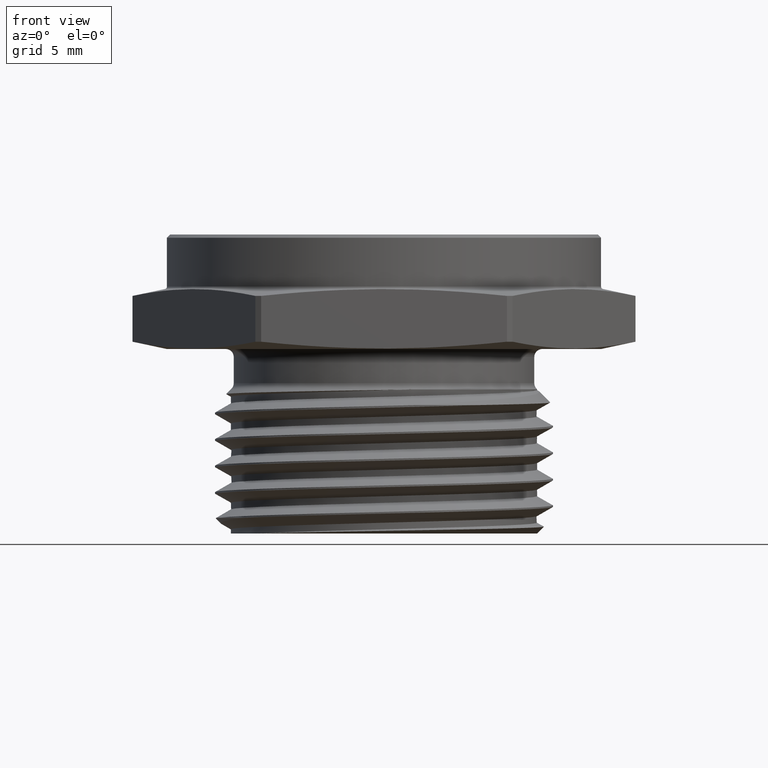
[diagram: clean part render]
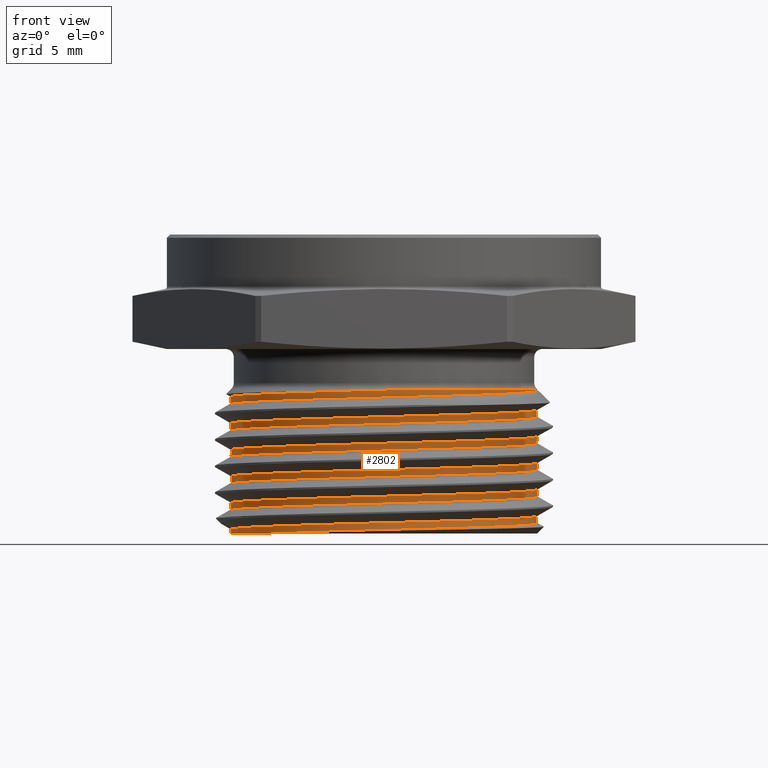
[diagram: same view with one face highlighted and labeled with its STEP entity id]
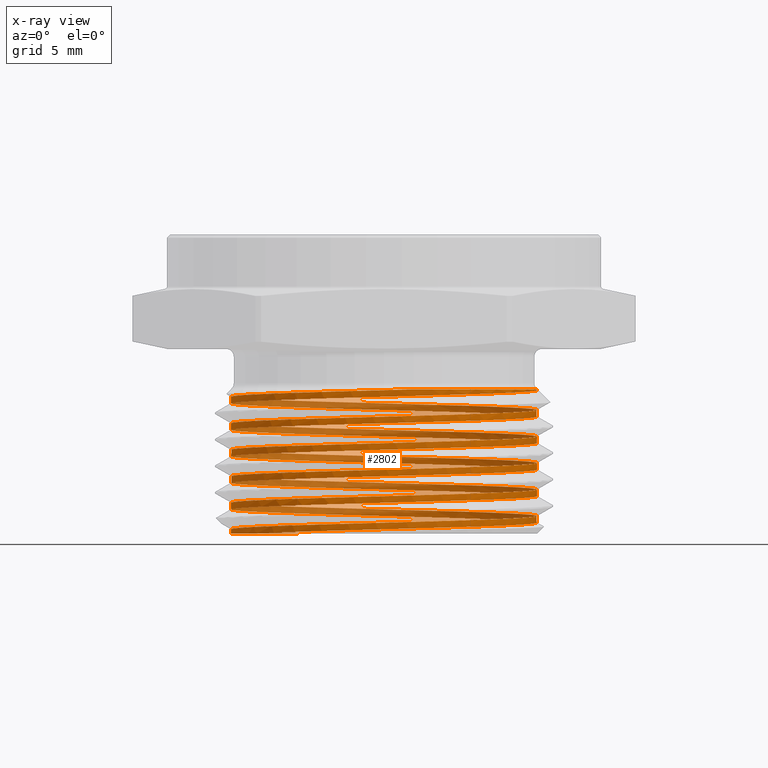
[diagram: x-ray of the same camera — body ghosted, the highlighted face saturated]
A machine part, front view. The second image highlights one B-rep face of the part: STEP entity #2802.
The next image is the same camera in x-ray: the body ghosted, the highlighted face saturated — about 43% of this face is hidden behind the body in this view.
In plain terms, the highlighted face is a freeform B-spline surface patch.
Its self-contained STEP definition (entity closure, byte-faithful):
#10 = CARTESIAN_POINT ( 'NONE',  ( 0.4816500000000485400, -0.02745854219735470100, -0.1268276695296636200 ) ) ;
#11 = CARTESIAN_POINT ( 'NONE',  ( 0.4816500000000000200, 8.528645638203623900E-013, -0.1268276695296635900 ) ) ;
#15 = CARTESIAN_POINT ( 'NONE',  ( 0.4793191301849720200, -0.05479006190296919300, -0.1268276695296635100 ) ) ;
#16 = CARTESIAN_POINT ( 'NONE',  ( 0.4722701288882778000, -0.09559373460641569500, -0.1268276695296634600 ) ) ;
#17 = CARTESIAN_POINT ( 'NONE',  ( 0.4693056876081801400, -0.1092257587523501200, -0.1268276695296637300 ) ) ;
#18 = CARTESIAN_POINT ( 'NONE',  ( 0.4622629431783556500, -0.1359818596743600800, -0.1268276695296636500 ) ) ;
#19 = CARTESIAN_POINT ( 'NONE',  ( 0.4581867956167941000, -0.1491306917093119800, -0.1268276695296635700 ) ) ;
#20 = CARTESIAN_POINT ( 'NONE',  ( 0.4443329055738548000, -0.1879055961737973500, -0.1268276695296636200 ) ) ;
#21 = CARTESIAN_POINT ( 'NONE',  ( 0.4329415171178954100, -0.2128649529809897600, -0.1268276695296635700 ) ) ;
#22 = CARTESIAN_POINT ( 'NONE',  ( 0.4125592474723437900, -0.2489425045327521600, -0.1268276695296635900 ) ) ;
#23 = CARTESIAN_POINT ( 'NONE',  ( 0.4051770422376794200, -0.2607860509966670700, -0.1268276695296637100 ) ) ;
#24 = CARTESIAN_POINT ( 'NONE',  ( 0.3895536388587349500, -0.2835943624313231900, -0.1268276695296636500 ) ) ;
#25 = CARTESIAN_POINT ( 'NONE',  ( 0.3812953367303809100, -0.2945995066264510700, -0.1268276695296637300 ) ) ;
#26 = CARTESIAN_POINT ( 'NONE',  ( 0.3552099385308379900, -0.3264440909810589800, -0.1268276695296637100 ) ) ;
#27 = CARTESIAN_POINT ( 'NONE',  ( 0.3360819213393476700, -0.3461212337684757600, -0.1268276695296636200 ) ) ;
#28 = CARTESIAN_POINT ( 'NONE',  ( 0.3047253151832538500, -0.3732563003361181200, -0.1268276695296635900 ) ) ;
#29 = CARTESIAN_POINT ( 'NONE',  ( 0.2937876455010721100, -0.3819245191072172000, -0.1268276695296636200 ) ) ;
#30 = CARTESIAN_POINT ( 'NONE',  ( 0.2714168950851646400, -0.3981336308410423600, -0.1268276695296636200 ) ) ;
#31 = CARTESIAN_POINT ( 'NONE',  ( 0.2599428048669383800, -0.4057149913811367000, -0.1268276695296635900 ) ) ;
#32 = CARTESIAN_POINT ( 'NONE',  ( 0.2246720535161511000, -0.4269214974708862600, -0.1268276695296635400 ) ) ;
#33 = CARTESIAN_POINT ( 'NONE',  ( 0.2000331470638135600, -0.4390203669363046400, -0.1268276695296636200 ) ) ;
#34 = CARTESIAN_POINT ( 'NONE',  ( 0.1613444736842401300, -0.4540330806382291700, -0.1268276695296636500 ) ) ;
#35 = CARTESIAN_POINT ( 'NONE',  ( 0.1481394442514301400, -0.4585127555692254900, -0.1268276695296635100 ) ) ;
#36 = CARTESIAN_POINT ( 'NONE',  ( 0.1214984554118057600, -0.4662803526799649300, -0.1268276695296635400 ) ) ;
#37 = CARTESIAN_POINT ( 'NONE',  ( 0.1080203928909419900, -0.4695867360392110800, -0.1268276695296636500 ) ) ;
#38 = CARTESIAN_POINT ( 'NONE',  ( 0.09438369790974449100, -0.4723118038635940600, -0.1268276695296636200 ) ) ;
#464 = CARTESIAN_POINT ( 'NONE',  ( -0.2939718568801549200, 0.3828518822514284700, -0.5800000000000000700 ) ) ;
#465 = CARTESIAN_POINT ( 'NONE',  ( -0.2675687117050809000, 0.4004918313979491400, -0.5799999999999999600 ) ) ;
#482 = CARTESIAN_POINT ( 'NONE',  ( -0.4009595742063897800, -0.2668672747869820200, -0.5799999999999999600 ) ) ;
#483 = CARTESIAN_POINT ( 'NONE',  ( -0.3185910458147805400, 0.3625874935459024200, -0.5799999999999998500 ) ) ;
#484 = CARTESIAN_POINT ( 'NONE',  ( -0.3629129892142140000, 0.3182202181019603300, -0.5799999999999998500 ) ) ;
#485 = CARTESIAN_POINT ( 'NONE',  ( -0.3828031594638814900, 0.2940186650971992100, -0.5800000000000000700 ) ) ;
#486 = CARTESIAN_POINT ( 'NONE',  ( -0.4091524503548327800, 0.2546185830294077100, -0.5799999999999999600 ) ) ;
#487 = CARTESIAN_POINT ( 'NONE',  ( -0.4173371658817603400, 0.2409646020899660100, -0.5799999999999997400 ) ) ;
#488 = CARTESIAN_POINT ( 'NONE',  ( -0.4321728596394882000, 0.2132155455815144000, -0.5799999999999998500 ) ) ;
#489 = CARTESIAN_POINT ( 'NONE',  ( -0.4455781153361982300, 0.1848799516094688000, -0.5799999999999992900 ) ) ;
#490 = CARTESIAN_POINT ( 'NONE',  ( -0.4561666193968391700, 0.1553893755342357100, -0.5800000000000001800 ) ) ;
#491 = CARTESIAN_POINT ( 'NONE',  ( -0.4653281852671432000, 0.1253136970839488200, -0.5800000000000004000 ) ) ;
#492 = CARTESIAN_POINT ( 'NONE',  ( -0.4692102225133172900, 0.1099032189025454700, -0.5800000000000000700 ) ) ;
#493 = CARTESIAN_POINT ( 'NONE',  ( -0.4785103703173336800, 0.06336765534023336400, -0.5800000000000000700 ) ) ;
#494 = CARTESIAN_POINT ( 'NONE',  ( -0.4815945787561573500, 0.03218251484198148000, -0.5799999999999998500 ) ) ;
#495 = CARTESIAN_POINT ( 'NONE',  ( -0.4816766108051689400, -0.01483063098672727700, -0.5799999999999997400 ) ) ;
#496 = CARTESIAN_POINT ( 'NONE',  ( -0.4809411326594644800, -0.03054120072476715000, -0.5800000000000001800 ) ) ;
#497 = CARTESIAN_POINT ( 'NONE',  ( -0.4778992717315335700, -0.06204372735376814700, -0.5800000000000000700 ) ) ;
#498 = CARTESIAN_POINT ( 'NONE',  ( -0.4755918359536996400, -0.07775688534451977200, -0.5799999999999997400 ) ) ;
#499 = CARTESIAN_POINT ( 'NONE',  ( -0.4664707071316396800, -0.1240154122086238600, -0.5799999999999997400 ) ) ;
#500 = CARTESIAN_POINT ( 'NONE',  ( -0.4574535484353462500, -0.1539922015029432900, -0.5800000000000000700 ) ) ;
#501 = CARTESIAN_POINT ( 'NONE',  ( -0.4395057765271308500, -0.1976589260550530300, -0.5800000000000001800 ) ) ;
#502 = CARTESIAN_POINT ( 'NONE',  ( -0.4327498318495814900, -0.2120507672376189300, -0.5799999999999997400 ) ) ;
#503 = CARTESIAN_POINT ( 'NONE',  ( -0.4178724710519901600, -0.2400427936614791000, -0.5799999999999997400 ) ) ;
#504 = CARTESIAN_POINT ( 'NONE',  ( -0.4097564270336772600, -0.2536502838059750400, -0.5799999999999998500 ) ) ;
#505 = CARTESIAN_POINT ( 'NONE',  ( -0.4009595742063897800, -0.2668672747869820200, -0.5799999999999999600 ) ) ;
#506 = CARTESIAN_POINT ( 'NONE',  ( -0.2675687117050809000, 0.4004918313979491900, -0.5799999999999999600 ) ) ;
#507 = CARTESIAN_POINT ( 'NONE',  ( -0.3390979598198016800, 0.3527031194522239300, -0.5775936401590541200 ) ) ;
#511 = CARTESIAN_POINT ( 'NONE',  ( -0.3954785442677973800, -0.2751023475666800600, -0.5797333303212673900 ) ) ;
#512 = CARTESIAN_POINT ( 'NONE',  ( -0.3896620622092966100, 0.2831081061622897100, -0.5753032856073698700 ) ) ;
#513 = CARTESIAN_POINT ( 'NONE',  ( -0.4816494620646211700, 0.1564992272757571900, -0.5711366189407032200 ) ) ;
#514 = CARTESIAN_POINT ( 'NONE',  ( -0.4816499999971546300, 1.655586102271072000E-006, -0.5669699522740365700 ) ) ;
#515 = CARTESIAN_POINT ( 'NONE',  ( -0.4816505379296880400, -0.1564959161035525400, -0.5628032856073699200 ) ) ;
#516 = CARTESIAN_POINT ( 'NONE',  ( -0.3896640084674862800, -0.2831054273677048300, -0.5586366189407032700 ) ) ;
#517 = CARTESIAN_POINT ( 'NONE',  ( -0.2976774790052845200, -0.4097149386318570400, -0.5544699522740365000 ) ) ;
#518 = CARTESIAN_POINT ( 'NONE',  ( -0.1488396098957650300, -0.4580758594666133300, -0.5503032856073698500 ) ) ;
#519 = CARTESIAN_POINT ( 'NONE',  ( -1.740786245542915000E-006, -0.5064367803013696300, -0.5461366189407032000 ) ) ;
#520 = CARTESIAN_POINT ( 'NONE',  ( 0.1488364607838632600, -0.4580768826750958300, -0.5419699522740365500 ) ) ;
#521 = CARTESIAN_POINT ( 'NONE',  ( 0.2976746623539720500, -0.4097169850488220400, -0.5378032856073699000 ) ) ;
#522 = CARTESIAN_POINT ( 'NONE',  ( 0.3896620622092966100, -0.2831081061622896500, -0.5336366189407032400 ) ) ;
#523 = CARTESIAN_POINT ( 'NONE',  ( 0.4816494620646211700, -0.1564992272757571600, -0.5294699522740364800 ) ) ;
#524 = CARTESIAN_POINT ( 'NONE',  ( 0.4816499999971546300, -1.655586102330057300E-006, -0.5253032856073698300 ) ) ;
#525 = CARTESIAN_POINT ( 'NONE',  ( 0.4816505379296882100, 0.1564959161035524800, -0.5211366189407032900 ) ) ;
#526 = CARTESIAN_POINT ( 'NONE',  ( 0.3896640084674862800, 0.2831054273677047200, -0.5169699522740366400 ) ) ;
#527 = CARTESIAN_POINT ( 'NONE',  ( 0.2976774790052845200, 0.4097149386318570400, -0.5128032856073699900 ) ) ;
#528 = CARTESIAN_POINT ( 'NONE',  ( 0.1488396098957650800, 0.4580758594666133300, -0.5086366189407033300 ) ) ;
#529 = CARTESIAN_POINT ( 'NONE',  ( 1.740786245604935600E-006, 0.5064367803013696300, -0.5044699522740365700 ) ) ;
#530 = CARTESIAN_POINT ( 'NONE',  ( -0.1488364607838632300, 0.4580768826750958300, -0.5003032856073699200 ) ) ;
#531 = CARTESIAN_POINT ( 'NONE',  ( -0.2976746623539720500, 0.4097169850488220900, -0.4961366189407031600 ) ) ;
#532 = CARTESIAN_POINT ( 'NONE',  ( -0.3896620622092966100, 0.2831081061622897100, -0.4919699522740366100 ) ) ;
#533 = CARTESIAN_POINT ( 'NONE',  ( -0.4816494620646211700, 0.1564992272757571900, -0.4878032856073699600 ) ) ;
#534 = CARTESIAN_POINT ( 'NONE',  ( -0.4816499999971546300, 1.655586102271072000E-006, -0.4836366189407033100 ) ) ;
#535 = CARTESIAN_POINT ( 'NONE',  ( -0.4816505379296880400, -0.1564959161035525400, -0.4794699522740366000 ) ) ;
#536 = CARTESIAN_POINT ( 'NONE',  ( -0.3896640084674862800, -0.2831054273677048300, -0.4753032856073699500 ) ) ;
#537 = CARTESIAN_POINT ( 'NONE',  ( -0.2976774790052845200, -0.4097149386318570400, -0.4711366189407031300 ) ) ;
#538 = CARTESIAN_POINT ( 'NONE',  ( -0.1488396098957650300, -0.4580758594666133300, -0.4669699522740365900 ) ) ;
#539 = CARTESIAN_POINT ( 'NONE',  ( -1.740786245542915000E-006, -0.5064367803013696300, -0.4628032856073698900 ) ) ;
#540 = CARTESIAN_POINT ( 'NONE',  ( 0.1488364607838632600, -0.4580768826750958300, -0.4586366189407032900 ) ) ;
#541 = CARTESIAN_POINT ( 'NONE',  ( 0.2976746623539720500, -0.4097169850488220400, -0.4544699522740365800 ) ) ;
#542 = CARTESIAN_POINT ( 'NONE',  ( 0.3896620622092966100, -0.2831081061622896500, -0.4503032856073699300 ) ) ;
#543 = CARTESIAN_POINT ( 'NONE',  ( 0.4816494620646211700, -0.1564992272757571600, -0.4461366189407031700 ) ) ;
#544 = CARTESIAN_POINT ( 'NONE',  ( 0.4816499999971546300, -1.655586102330057300E-006, -0.4419699522740365700 ) ) ;
#545 = CARTESIAN_POINT ( 'NONE',  ( 0.4816505379296882100, 0.1564959161035524800, -0.4378032856073699200 ) ) ;
#546 = CARTESIAN_POINT ( 'NONE',  ( 0.3896640084674862800, 0.2831054273677047200, -0.4336366189407032700 ) ) ;
#547 = CARTESIAN_POINT ( 'NONE',  ( 0.2976774790052845200, 0.4097149386318570400, -0.4294699522740366100 ) ) ;
#742 = FACE_OUTER_BOUND ( 'NONE', #2454, .T. ) ;
#884 = B_SPLINE_CURVE_WITH_KNOTS ( 'NONE', 3,
 ( #465, #464, #483, #484, #485, #486, #487, #488, #489, #490, #491, #492, #493, #494, #495, #496, #497, #498, #499, #500, #501, #502, #503, #504, #505 ),
 .UNSPECIFIED., .F., .F.,
 ( 4, 2, 2, 2, 1, 2, 2, 2, 2, 2, 2, 2, 4 ),
 ( 0.0000000000000000000, 0.002417358866381754600, 0.004834717732763509300, 0.006043397165954388100, 0.007252076599145265200, 0.008460756032336144000, 0.009669435465527020200, 0.01208679433190877600, 0.01329547376509965200, 0.01450415319829052900, 0.01692151206467228500, 0.01813019149786316400, 0.01933887093105404000 ),
 .UNSPECIFIED. ) ;
#885 =( BOUNDED_CURVE ( )  B_SPLINE_CURVE ( 2, ( #506, #507, #512, #513, #514, #515, #516, #517, #518, #519, #520, #521, #522, #523, #524, #525, #526, #527, #528, #529, #530, #531, #532, #533, #534, #535, #536, #537, #538, #539, #540, #541, #542, #543, #544, #545, #546, #547, #1622, #1623, #1624, #1625, #1626, #1627, #1628, #1629, #1630, #1631, #1632, #1633, #1634, #1635, #1636, #1637, #1638, #1639, #1640, #1641, #1642, #1643, #1644, #1645, #1646, #1647, #1648, #1649, #1650, #1651, #1652, #1653, #1654, #1655, #1656, #1657, #1658, #1659, #1660, #1661, #1662, #1663, #1664, #1665, #1666, #1667, #1668, #1669, #1670, #1671, #1672, #1673, #1674, #1675, #1676, #1677, #1678, #1679, #1680, #1681, #1682, #1683, #1684, #1685, #1686, #1687, #1688, #1689, #1690, #1691, #1692, #1693, #1694 ),
 .UNSPECIFIED., .F., .F. ) 
 B_SPLINE_CURVE_WITH_KNOTS ( ( 3, 2, 2, 2, 2, 2, 2, 2, 2, 2, 2, 2, 2, 2, 2, 2, 2, 2, 2, 2, 2, 2, 2, 2, 2, 2, 2, 2, 2, 2, 2, 2, 2, 2, 2, 2, 2, 2, 2, 2, 2, 2, 2, 2, 2, 2, 2, 2, 2, 2, 2, 2, 2, 2, 2, 3 ),
 ( 0.1205418117983947100, 0.1285714285714285600, 0.1428571428571428500, 0.1571428571428571400, 0.1714285714285714300, 0.1857142857142857200, 0.2000000000000000100, 0.2142857142857142700, 0.2285714285714285400, 0.2428571428571428500, 0.2571428571428571200, 0.2714285714285714100, 0.2857142857142857000, 0.2999999999999999900, 0.3142857142857142800, 0.3285714285714285700, 0.3428571428571428600, 0.3571428571428571500, 0.3714285714285714400, 0.3857142857142857900, 0.4000000000000000200, 0.4142857142857143700, 0.4285714285714286000, 0.4428571428571428400, 0.4571428571428571800, 0.4714285714285714200, 0.4857142857142857700, 0.5000000000000000000, 0.5142857142857142300, 0.5285714285714285800, 0.5428571428571428200, 0.5571428571428571600, 0.5714285714285714000, 0.5857142857142857400, 0.5999999999999999800, 0.6142857142857143200, 0.6285714285714285600, 0.6428571428571429000, 0.6571428571428571400, 0.6714285714285713700, 0.6857142857142857200, 0.6999999999999999600, 0.7142857142857143000, 0.7285714285714285400, 0.7428571428571428800, 0.7571428571428571200, 0.7714285714285715700, 0.7857142857142857000, 0.8000000000000000400, 0.8142857142857142800, 0.8285714285714286300, 0.8428571428571429700, 0.8571428571428571000, 0.8714285714285714400, 0.8857142857142856800, 0.8973191788645833400 ),
 .UNSPECIFIED. ) 
 CURVE ( )  GEOMETRIC_REPRESENTATION_ITEM ( )  RATIONAL_B_SPLINE_CURVE ( ( 0.9759054243606325500, 0.9724901807618997500, 1.000000000000000000, 0.9510565162951535300, 1.000000000000000000, 0.9510565162951535300, 1.000000000000000000, 0.9510565162951535300, 1.000000000000000000, 0.9510565162951535300, 1.000000000000000000, 0.9510565162951535300, 1.000000000000000000, 0.9510565162951535300, 1.000000000000000000, 0.9510565162951535300, 1.000000000000000000, 0.9510565162951535300, 1.000000000000000000, 0.9510565162951535300, 1.000000000000000000, 0.9510565162951535300, 1.000000000000000000, 0.9510565162951535300, 1.000000000000000000, 0.9510565162951535300, 1.000000000000000000, 0.9510565162951535300, 1.000000000000000000, 0.9510565162951535300, 1.000000000000000000, 0.9510565162951535300, 1.000000000000000000, 0.9510565162951535300, 1.000000000000000000, 0.9510565162951535300, 1.000000000000000000, 0.9510565162951535300, 1.000000000000000000, 0.9510565162951535300, 1.000000000000000000, 0.9510565162951535300, 1.000000000000000000, 0.9510565162951535300, 1.000000000000000000, 0.9510565162951535300, 1.000000000000000000, 0.9510565162951535300, 1.000000000000000000, 0.9510565162951535300, 1.000000000000000000, 0.9510565162951535300, 1.000000000000000000, 0.9510565162951535300, 1.000000000000000000, 0.9510565162951535300, 1.000000000000000000, 0.9510565162951535300, 1.000000000000000000, 0.9510565162951535300, 1.000000000000000000, 0.9510565162951535300, 1.000000000000000000, 0.9510565162951535300, 1.000000000000000000, 0.9510565162951535300, 1.000000000000000000, 0.9510565162951535300, 1.000000000000000000, 0.9510565162951535300, 1.000000000000000000, 0.9510565162951535300, 1.000000000000000000, 0.9510565162951535300, 1.000000000000000000, 0.9510565162951535300, 1.000000000000000000, 0.9510565162951535300, 1.000000000000000000, 0.9510565162951535300, 1.000000000000000000, 0.9510565162951535300, 1.000000000000000000, 0.9510565162951535300, 1.000000000000000000, 0.9510565162951535300, 1.000000000000000000, 0.9510565162951535300, 1.000000000000000000, 0.9510565162951535300, 1.000000000000000000, 0.9510565162951535300, 1.000000000000000000, 0.9510565162951535300, 1.000000000000000000, 0.9510565162951535300, 1.000000000000000000, 0.9510565162951535300, 1.000000000000000000, 0.9510565162951535300, 1.000000000000000000, 0.9510565162951535300, 1.000000000000000000, 0.9510565162951535300, 1.000000000000000000, 0.9510565162951535300, 1.000000000000000000, 0.9510565162951535300, 1.000000000000000000, 0.9602411270841343400, 0.9850779002433528400 ) ) 
 REPRESENTATION_ITEM ( '' )  );
#886 =( BOUNDED_CURVE ( )  B_SPLINE_CURVE ( 2, ( #482, #511, #1697, #1698, #1699, #1700, #1701, #1702, #1703, #1704, #1705, #1706, #1707, #1708, #1709, #1710, #1711, #1712, #1713, #1714, #1715, #1716, #1717, #1718, #1719, #1720, #1721, #1722, #1723, #1724, #1725, #1726, #1727, #1728, #1729, #1730, #1731, #1732, #1733, #1734, #1735, #1736, #1737, #1738, #1739, #1740, #1741, #1742, #1743, #1744, #1745, #1746, #1747, #1748, #1749, #1750, #1751, #1752, #1753, #1754, #1755, #1756, #1757, #1758, #1759, #1760, #1761, #1762, #1763, #1764, #1765, #1766, #1767, #1768, #1769, #1770, #1771, #1772, #1773, #1774, #1775, #1776, #1777, #1778, #1779, #1780, #1781, #1782, #1783, #1784, #1785, #1786, #1787, #1788, #1789, #1790, #1791, #1792, #1793, #1794, #1795, #1796, #1797, #1798, #1799, #1800, #1801, #1802, #1803, #1804, #1805, #1806, #1807 ),
 .UNSPECIFIED., .F., .F. ) 
 B_SPLINE_CURVE_WITH_KNOTS ( ( 3, 2, 2, 2, 2, 2, 2, 2, 2, 2, 2, 2, 2, 2, 2, 2, 2, 2, 2, 2, 2, 2, 2, 2, 2, 2, 2, 2, 2, 2, 2, 2, 2, 2, 2, 2, 2, 2, 2, 2, 2, 2, 2, 2, 2, 2, 2, 2, 2, 2, 2, 2, 2, 2, 2, 2, 3 ),
 ( 0.1561964543839521300, 0.1571428571428571400, 0.1714285714285714300, 0.1857142857142857200, 0.2000000000000000100, 0.2142857142857142700, 0.2285714285714285600, 0.2428571428571428500, 0.2571428571428571200, 0.2714285714285714100, 0.2857142857142857000, 0.2999999999999999900, 0.3142857142857142800, 0.3285714285714285700, 0.3428571428571428600, 0.3571428571428572100, 0.3714285714285714400, 0.3857142857142857300, 0.4000000000000000200, 0.4142857142857143100, 0.4285714285714285500, 0.4428571428571428400, 0.4571428571428571300, 0.4714285714285714200, 0.4857142857142857700, 0.5000000000000000000, 0.5142857142857142300, 0.5285714285714285800, 0.5428571428571428200, 0.5571428571428571600, 0.5714285714285714000, 0.5857142857142856300, 0.5999999999999999800, 0.6142857142857143200, 0.6285714285714285600, 0.6428571428571429000, 0.6571428571428571400, 0.6714285714285713700, 0.6857142857142857200, 0.6999999999999999600, 0.7142857142857143000, 0.7285714285714285400, 0.7428571428571428800, 0.7571428571428571200, 0.7714285714285714600, 0.7857142857142857000, 0.8000000000000000400, 0.8142857142857142800, 0.8285714285714286300, 0.8428571428571428600, 0.8571428571428571000, 0.8714285714285714400, 0.8857142857142856800, 0.9000000000000000200, 0.9142857142857141500, 0.9285714285714284900, 0.9331568081434988800 ),
 .UNSPECIFIED. ) 
 CURVE ( )  GEOMETRIC_REPRESENTATION_ITEM ( )  RATIONAL_B_SPLINE_CURVE ( ( 0.9939447738617677200, 0.9967575826393917400, 1.000000000000000000, 0.9510565162951535300, 1.000000000000000000, 0.9510565162951535300, 1.000000000000000000, 0.9510565162951535300, 1.000000000000000000, 0.9510565162951535300, 1.000000000000000000, 0.9510565162951535300, 1.000000000000000000, 0.9510565162951535300, 1.000000000000000000, 0.9510565162951535300, 1.000000000000000000, 0.9510565162951535300, 1.000000000000000000, 0.9510565162951535300, 1.000000000000000000, 0.9510565162951535300, 1.000000000000000000, 0.9510565162951535300, 1.000000000000000000, 0.9510565162951535300, 1.000000000000000000, 0.9510565162951535300, 1.000000000000000000, 0.9510565162951535300, 1.000000000000000000, 0.9510565162951535300, 1.000000000000000000, 0.9510565162951535300, 1.000000000000000000, 0.9510565162951535300, 1.000000000000000000, 0.9510565162951535300, 1.000000000000000000, 0.9510565162951535300, 1.000000000000000000, 0.9510565162951535300, 1.000000000000000000, 0.9510565162951535300, 1.000000000000000000, 0.9510565162951535300, 1.000000000000000000, 0.9510565162951535300, 1.000000000000000000, 0.9510565162951535300, 1.000000000000000000, 0.9510565162951535300, 1.000000000000000000, 0.9510565162951535300, 1.000000000000000000, 0.9510565162951535300, 1.000000000000000000, 0.9510565162951535300, 1.000000000000000000, 0.9510565162951535300, 1.000000000000000000, 0.9510565162951535300, 1.000000000000000000, 0.9510565162951535300, 1.000000000000000000, 0.9510565162951535300, 1.000000000000000000, 0.9510565162951535300, 1.000000000000000000, 0.9510565162951535300, 1.000000000000000000, 0.9510565162951535300, 1.000000000000000000, 0.9510565162951535300, 1.000000000000000000, 0.9510565162951535300, 1.000000000000000000, 0.9510565162951535300, 1.000000000000000000, 0.9510565162951535300, 1.000000000000000000, 0.9510565162951535300, 1.000000000000000000, 0.9510565162951535300, 1.000000000000000000, 0.9510565162951535300, 1.000000000000000000, 0.9510565162951535300, 1.000000000000000000, 0.9510565162951535300, 1.000000000000000000, 0.9510565162951535300, 1.000000000000000000, 0.9510565162951535300, 1.000000000000000000, 0.9510565162951535300, 1.000000000000000000, 0.9510565162951535300, 1.000000000000000000, 0.9510565162951535300, 1.000000000000000000, 0.9510565162951535300, 1.000000000000000000, 0.9510565162951535300, 1.000000000000000000, 0.9510565162951535300, 1.000000000000000000, 0.9510565162951535300, 1.000000000000000000, 0.9510565162951535300, 1.000000000000000000, 0.9842902884743689500, 0.9786654755925223700 ) ) 
 REPRESENTATION_ITEM ( '' )  );
#890 =( BOUNDED_SURFACE ( )  B_SPLINE_SURFACE ( 1, 2, ( 
 ( #1968, #1974, #1977, #1978, #1979, #1980, #1981, #1982, #1983, #1984, #1985, #1986, #1987, #1988, #1989, #1990, #1991, #1992, #1993, #1994, #1995, #1996, #1997, #1998, #1999, #2000, #2001, #2002, #2003, #2004, #2005, #2006, #2007, #2008, #2009, #2010, #2011, #2012, #2013, #2014, #2015, #2016, #2017, #2018, #2019, #2020, #2021, #2022, #2023, #2024, #2025, #2026, #2027, #2028, #2029, #2030, #2031, #2032, #2033, #2034, #2035, #2036, #2037, #2038, #2039, #2040, #2041, #2042, #2043, #2044, #2045, #2046, #2047, #2048, #2049, #2050, #2051, #2052, #2053, #2054, #2055, #2056, #2057, #2058, #2059, #2060, #2061, #2062, #2063, #2064, #2065, #2066, #2067, #2068, #2069, #2070, #2071, #2072, #2073, #2074, #2075, #2076, #2077, #2078, #2079, #2080, #2081, #2082, #2083, #2084, #2085, #2086, #2087, #2088, #2089, #2090, #2091, #2092, #2093, #2094, #2095, #2096, #2097, #2098, #2099, #2100, #2101, #2102, #2103, #2104, #2105, #2106, #2107, #2108, #2109, #2110, #2111, #2112, #2113, #2114, #2115 ),
 ( #2116, #2117, #2118, #2119, #2120, #2121, #2122, #2123, #2124, #2125, #2126, #2127, #2128, #2129, #2130, #2131, #2132, #2133, #2134, #2135, #2136, #2137, #2138, #2139, #2140, #2141, #2142, #2143, #2144, #2145, #2146, #2147, #2148, #2149, #2150, #2151, #2152, #2153, #2154, #2155, #2156, #2157, #2158, #2159, #2160, #2161, #2162, #2163, #2164, #2165, #2166, #2167, #2168, #2169, #2170, #2171, #2172, #2173, #2174, #2175, #2176, #2177, #2178, #2179, #2180, #2181, #2182, #2183, #2184, #2185, #2186, #2187, #2188, #2189, #2190, #2191, #2192, #2193, #2194, #2195, #2196, #2197, #2198, #2199, #2200, #2201, #2202, #2203, #2204, #2205, #2206, #2207, #2208, #2209, #2210, #2211, #2212, #2213, #2214, #2215, #2216, #2217, #2218, #2219, #2220, #2221, #2222, #2223, #2224, #2225, #2226, #2227, #2228, #2229, #2230, #2231, #2232, #2233, #2234, #2235, #2236, #2237, #2238, #2239, #2240, #2241, #2242, #2243, #2244, #2245, #2246, #2247, #2248, #2249, #2250, #2251, #2252, #2253, #2254, #2255, #2256 ) ),
 .UNSPECIFIED., .F., .F., .F. ) 
 B_SPLINE_SURFACE_WITH_KNOTS ( ( 2, 2 ),
 ( 3, 2, 2, 2, 2, 2, 2, 2, 2, 2, 2, 2, 2, 2, 2, 2, 2, 2, 2, 2, 2, 2, 2, 2, 2, 2, 2, 2, 2, 2, 2, 2, 2, 2, 2, 2, 2, 2, 2, 2, 2, 2, 2, 2, 2, 2, 2, 2, 2, 2, 2, 2, 2, 2, 2, 2, 2, 2, 2, 2, 2, 2, 2, 2, 2, 2, 2, 2, 2, 2, 3 ),
 ( 0.0000000000000000000, 1.000000000000000000 ),
 ( 0.0000000000000000000, 0.01428571428571428500, 0.02857142857142857100, 0.04285714285714285800, 0.05714285714285714100, 0.07142857142857142500, 0.08571428571428571500, 0.1000000000000000100, 0.1142857142857142800, 0.1285714285714285600, 0.1428571428571428500, 0.1571428571428571400, 0.1714285714285714300, 0.1857142857142857200, 0.2000000000000000100, 0.2142857142857142700, 0.2285714285714285600, 0.2428571428571428500, 0.2571428571428571200, 0.2714285714285714100, 0.2857142857142857000, 0.2999999999999999900, 0.3142857142857142800, 0.3285714285714285700, 0.3428571428571428600, 0.3571428571428571500, 0.3714285714285714400, 0.3857142857142857300, 0.4000000000000000200, 0.4142857142857143100, 0.4285714285714285500, 0.4428571428571428400, 0.4571428571428571300, 0.4714285714285714200, 0.4857142857142857100, 0.5000000000000000000, 0.5142857142857142300, 0.5285714285714285800, 0.5428571428571428200, 0.5571428571428571600, 0.5714285714285714000, 0.5857142857142857400, 0.5999999999999999800, 0.6142857142857143200, 0.6285714285714285600, 0.6428571428571429000, 0.6571428571428571400, 0.6714285714285713700, 0.6857142857142857200, 0.6999999999999999600, 0.7142857142857143000, 0.7285714285714285400, 0.7428571428571428800, 0.7571428571428571200, 0.7714285714285714600, 0.7857142857142857000, 0.8000000000000000400, 0.8142857142857142800, 0.8285714285714286300, 0.8428571428571428600, 0.8571428571428571000, 0.8714285714285714400, 0.8857142857142856800, 0.9000000000000000200, 0.9142857142857142600, 0.9285714285714286000, 0.9428571428571428400, 0.9571428571428571800, 0.9714285714285714200, 0.9857142857142857700, 1.000000000000000000 ),
 .UNSPECIFIED. ) 
 GEOMETRIC_REPRESENTATION_ITEM ( )  RATIONAL_B_SPLINE_SURFACE ( (
 ( 1.000000000000000000, 0.9510565162951535300, 1.000000000000000000, 0.9510565162951535300, 1.000000000000000000, 0.9510565162951535300, 1.000000000000000000, 0.9510565162951535300, 1.000000000000000000, 0.9510565162951535300, 1.000000000000000000, 0.9510565162951535300, 1.000000000000000000, 0.9510565162951535300, 1.000000000000000000, 0.9510565162951535300, 1.000000000000000000, 0.9510565162951535300, 1.000000000000000000, 0.9510565162951535300, 1.000000000000000000, 0.9510565162951535300, 1.000000000000000000, 0.9510565162951535300, 1.000000000000000000, 0.9510565162951535300, 1.000000000000000000, 0.9510565162951535300, 1.000000000000000000, 0.9510565162951535300, 1.000000000000000000, 0.9510565162951535300, 1.000000000000000000, 0.9510565162951535300, 1.000000000000000000, 0.9510565162951535300, 1.000000000000000000, 0.9510565162951535300, 1.000000000000000000, 0.9510565162951535300, 1.000000000000000000, 0.9510565162951535300, 1.000000000000000000, 0.9510565162951535300, 1.000000000000000000, 0.9510565162951535300, 1.000000000000000000, 0.9510565162951535300, 1.000000000000000000, 0.9510565162951535300, 1.000000000000000000, 0.9510565162951535300, 1.000000000000000000, 0.9510565162951535300, 1.000000000000000000, 0.9510565162951535300, 1.000000000000000000, 0.9510565162951535300, 1.000000000000000000, 0.9510565162951535300, 1.000000000000000000, 0.9510565162951535300, 1.000000000000000000, 0.9510565162951535300, 1.000000000000000000, 0.9510565162951535300, 1.000000000000000000, 0.9510565162951535300, 1.000000000000000000, 0.9510565162951535300, 1.000000000000000000, 0.9510565162951535300, 1.000000000000000000, 0.9510565162951535300, 1.000000000000000000, 0.9510565162951535300, 1.000000000000000000, 0.9510565162951535300, 1.000000000000000000, 0.9510565162951535300, 1.000000000000000000, 0.9510565162951535300, 1.000000000000000000, 0.9510565162951535300, 1.000000000000000000, 0.9510565162951535300, 1.000000000000000000, 0.9510565162951535300, 1.000000000000000000, 0.9510565162951535300, 1.000000000000000000, 0.9510565162951535300, 1.000000000000000000, 0.9510565162951535300, 1.000000000000000000, 0.9510565162951535300, 1.000000000000000000, 0.9510565162951535300, 1.000000000000000000, 0.9510565162951535300, 1.000000000000000000, 0.9510565162951535300, 1.000000000000000000, 0.9510565162951535300, 1.000000000000000000, 0.9510565162951535300, 1.000000000000000000, 0.9510565162951535300, 1.000000000000000000, 0.9510565162951535300, 1.000000000000000000, 0.9510565162951535300, 1.000000000000000000, 0.9510565162951535300, 1.000000000000000000, 0.9510565162951535300, 1.000000000000000000, 0.9510565162951535300, 1.000000000000000000, 0.9510565162951535300, 1.000000000000000000, 0.9510565162951535300, 1.000000000000000000, 0.9510565162951535300, 1.000000000000000000, 0.9510565162951535300, 1.000000000000000000, 0.9510565162951535300, 1.000000000000000000, 0.9510565162951535300, 1.000000000000000000, 0.9510565162951535300, 1.000000000000000000, 0.9510565162951535300, 1.000000000000000000, 0.9510565162951535300, 1.000000000000000000, 0.9510565162951535300, 1.000000000000000000, 0.9510565162951535300, 1.000000000000000000),
 ( 1.000000000000000000, 0.9510565162951535300, 1.000000000000000000, 0.9510565162951535300, 1.000000000000000000, 0.9510565162951535300, 1.000000000000000000, 0.9510565162951535300, 1.000000000000000000, 0.9510565162951535300, 1.000000000000000000, 0.9510565162951535300, 1.000000000000000000, 0.9510565162951535300, 1.000000000000000000, 0.9510565162951535300, 1.000000000000000000, 0.9510565162951535300, 1.000000000000000000, 0.9510565162951535300, 1.000000000000000000, 0.9510565162951535300, 1.000000000000000000, 0.9510565162951535300, 1.000000000000000000, 0.9510565162951535300, 1.000000000000000000, 0.9510565162951535300, 1.000000000000000000, 0.9510565162951535300, 1.000000000000000000, 0.9510565162951535300, 1.000000000000000000, 0.9510565162951535300, 1.000000000000000000, 0.9510565162951535300, 1.000000000000000000, 0.9510565162951535300, 1.000000000000000000, 0.9510565162951535300, 1.000000000000000000, 0.9510565162951535300, 1.000000000000000000, 0.9510565162951535300, 1.000000000000000000, 0.9510565162951535300, 1.000000000000000000, 0.9510565162951535300, 1.000000000000000000, 0.9510565162951535300, 1.000000000000000000, 0.9510565162951535300, 1.000000000000000000, 0.9510565162951535300, 1.000000000000000000, 0.9510565162951535300, 1.000000000000000000, 0.9510565162951535300, 1.000000000000000000, 0.9510565162951535300, 1.000000000000000000, 0.9510565162951535300, 1.000000000000000000, 0.9510565162951535300, 1.000000000000000000, 0.9510565162951535300, 1.000000000000000000, 0.9510565162951535300, 1.000000000000000000, 0.9510565162951535300, 1.000000000000000000, 0.9510565162951535300, 1.000000000000000000, 0.9510565162951535300, 1.000000000000000000, 0.9510565162951535300, 1.000000000000000000, 0.9510565162951535300, 1.000000000000000000, 0.9510565162951535300, 1.000000000000000000, 0.9510565162951535300, 1.000000000000000000, 0.9510565162951535300, 1.000000000000000000, 0.9510565162951535300, 1.000000000000000000, 0.9510565162951535300, 1.000000000000000000, 0.9510565162951535300, 1.000000000000000000, 0.9510565162951535300, 1.000000000000000000, 0.9510565162951535300, 1.000000000000000000, 0.9510565162951535300, 1.000000000000000000, 0.9510565162951535300, 1.000000000000000000, 0.9510565162951535300, 1.000000000000000000, 0.9510565162951535300, 1.000000000000000000, 0.9510565162951535300, 1.000000000000000000, 0.9510565162951535300, 1.000000000000000000, 0.9510565162951535300, 1.000000000000000000, 0.9510565162951535300, 1.000000000000000000, 0.9510565162951535300, 1.000000000000000000, 0.9510565162951535300, 1.000000000000000000, 0.9510565162951535300, 1.000000000000000000, 0.9510565162951535300, 1.000000000000000000, 0.9510565162951535300, 1.000000000000000000, 0.9510565162951535300, 1.000000000000000000, 0.9510565162951535300, 1.000000000000000000, 0.9510565162951535300, 1.000000000000000000, 0.9510565162951535300, 1.000000000000000000, 0.9510565162951535300, 1.000000000000000000, 0.9510565162951535300, 1.000000000000000000, 0.9510565162951535300, 1.000000000000000000, 0.9510565162951535300, 1.000000000000000000, 0.9510565162951535300, 1.000000000000000000, 0.9510565162951535300, 1.000000000000000000) ) ) 
 REPRESENTATION_ITEM ( '' )  SURFACE ( )  );
#1603 = B_SPLINE_CURVE_WITH_KNOTS ( 'NONE', 3,
 ( #2380, #2381, #2386, #2379 ),
 .UNSPECIFIED., .F., .F.,
 ( 4, 4 ),
 ( 2.219384124222190100E-015, 0.002466183312534904900 ),
 .UNSPECIFIED. ) ;
#1608 = B_SPLINE_CURVE_WITH_KNOTS ( 'NONE', 3,
 ( #11, #10, #15, #16, #17, #18, #19, #20, #21, #22, #23, #24, #25, #26, #27, #28, #29, #30, #31, #32, #33, #34, #35, #36, #37, #38 ),
 .UNSPECIFIED., .F., .F.,
 ( 4, 2, 2, 2, 2, 2, 2, 2, 2, 2, 2, 2, 4 ),
 ( 0.002466183312534904900, 0.004583517690766278000, 0.005642184879881965600, 0.006700852068997653300, 0.008818186447229026800, 0.009876853636344716200, 0.01093552082546040600, 0.01305285520369178400, 0.01411152239280747200, 0.01517018958192316000, 0.01728752396015454200, 0.01834619114927022900, 0.01940485833838591700 ),
 .UNSPECIFIED. ) ;
#1622 = CARTESIAN_POINT ( 'NONE',  ( 0.1488396098957650800, 0.4580758594666133300, -0.4253032856073699100 ) ) ;
#1623 = CARTESIAN_POINT ( 'NONE',  ( 1.740786245604935600E-006, 0.5064367803013696300, -0.4211366189407032600 ) ) ;
#1624 = CARTESIAN_POINT ( 'NONE',  ( -0.1488364607838632300, 0.4580768826750958300, -0.4169699522740365500 ) ) ;
#1625 = CARTESIAN_POINT ( 'NONE',  ( -0.2976746623539720500, 0.4097169850488220900, -0.4128032856073699000 ) ) ;
#1626 = CARTESIAN_POINT ( 'NONE',  ( -0.3896620622092966100, 0.2831081061622897100, -0.4086366189407033000 ) ) ;
#1627 = CARTESIAN_POINT ( 'NONE',  ( -0.4816494620646211700, 0.1564992272757571900, -0.4044699522740366500 ) ) ;
#1628 = CARTESIAN_POINT ( 'NONE',  ( -0.4816499999971546300, 1.655586102271072000E-006, -0.4003032856073699400 ) ) ;
#1629 = CARTESIAN_POINT ( 'NONE',  ( -0.4816505379296880400, -0.1564959161035525400, -0.3961366189407032900 ) ) ;
#1630 = CARTESIAN_POINT ( 'NONE',  ( -0.3896640084674862800, -0.2831054273677048300, -0.3919699522740365800 ) ) ;
#1631 = CARTESIAN_POINT ( 'NONE',  ( -0.2976774790052845200, -0.4097149386318570400, -0.3878032856073699300 ) ) ;
#1632 = CARTESIAN_POINT ( 'NONE',  ( -0.1488396098957650300, -0.4580758594666133300, -0.3836366189407032800 ) ) ;
#1633 = CARTESIAN_POINT ( 'NONE',  ( -1.740786245542915000E-006, -0.5064367803013696300, -0.3794699522740365700 ) ) ;
#1634 = CARTESIAN_POINT ( 'NONE',  ( 0.1488364607838632600, -0.4580768826750958300, -0.3753032856073699700 ) ) ;
#1635 = CARTESIAN_POINT ( 'NONE',  ( 0.2976746623539720500, -0.4097169850488220400, -0.3711366189407032100 ) ) ;
#1636 = CARTESIAN_POINT ( 'NONE',  ( 0.3896620622092966100, -0.2831081061622896500, -0.3669699522740366100 ) ) ;
#1637 = CARTESIAN_POINT ( 'NONE',  ( 0.4816494620646211700, -0.1564992272757571600, -0.3628032856073698500 ) ) ;
#1638 = CARTESIAN_POINT ( 'NONE',  ( 0.4816499999971546300, -1.655586102330057300E-006, -0.3586366189407032600 ) ) ;
#1639 = CARTESIAN_POINT ( 'NONE',  ( 0.4816505379296882100, 0.1564959161035524800, -0.3544699522740364400 ) ) ;
#1640 = CARTESIAN_POINT ( 'NONE',  ( 0.3896640084674862800, 0.2831054273677047200, -0.3503032856073699500 ) ) ;
#1641 = CARTESIAN_POINT ( 'NONE',  ( 0.2976774790052845200, 0.4097149386318570400, -0.3461366189407032400 ) ) ;
#1642 = CARTESIAN_POINT ( 'NONE',  ( 0.1488396098957650800, 0.4580758594666133300, -0.3419699522740365900 ) ) ;
#1643 = CARTESIAN_POINT ( 'NONE',  ( 1.740786245604935600E-006, 0.5064367803013696300, -0.3378032856073700000 ) ) ;
#1644 = CARTESIAN_POINT ( 'NONE',  ( -0.1488364607838632300, 0.4580768826750958300, -0.3336366189407032300 ) ) ;
#1645 = CARTESIAN_POINT ( 'NONE',  ( -0.2976746623539720500, 0.4097169850488220900, -0.3294699522740366400 ) ) ;
#1646 = CARTESIAN_POINT ( 'NONE',  ( -0.3896620622092966100, 0.2831081061622897100, -0.3253032856073699900 ) ) ;
#1647 = CARTESIAN_POINT ( 'NONE',  ( -0.4816494620646211700, 0.1564992272757571900, -0.3211366189407032800 ) ) ;
#1648 = CARTESIAN_POINT ( 'NONE',  ( -0.4816499999971546300, 1.655586102271072000E-006, -0.3169699522740366300 ) ) ;
#1649 = CARTESIAN_POINT ( 'NONE',  ( -0.4816505379296880400, -0.1564959161035525400, -0.3128032856073699700 ) ) ;
#1650 = CARTESIAN_POINT ( 'NONE',  ( -0.3896640084674862800, -0.2831054273677048300, -0.3086366189407032700 ) ) ;
#1651 = CARTESIAN_POINT ( 'NONE',  ( -0.2976774790052845200, -0.4097149386318570400, -0.3044699522740366100 ) ) ;
#1652 = CARTESIAN_POINT ( 'NONE',  ( -0.1488396098957650300, -0.4580758594666133300, -0.3003032856073699600 ) ) ;
#1653 = CARTESIAN_POINT ( 'NONE',  ( -1.740786245542915000E-006, -0.5064367803013696300, -0.2961366189407032000 ) ) ;
#1654 = CARTESIAN_POINT ( 'NONE',  ( 0.1488364607838632600, -0.4580768826750958300, -0.2919699522740366000 ) ) ;
#1655 = CARTESIAN_POINT ( 'NONE',  ( 0.2976746623539720500, -0.4097169850488220400, -0.2878032856073699500 ) ) ;
#1656 = CARTESIAN_POINT ( 'NONE',  ( 0.3896620622092966100, -0.2831081061622896500, -0.2836366189407032400 ) ) ;
#1657 = CARTESIAN_POINT ( 'NONE',  ( 0.4816494620646211700, -0.1564992272757571600, -0.2794699522740365900 ) ) ;
#1658 = CARTESIAN_POINT ( 'NONE',  ( 0.4816499999971546300, -1.655586102330057300E-006, -0.2753032856073699400 ) ) ;
#1659 = CARTESIAN_POINT ( 'NONE',  ( 0.4816505379296882100, 0.1564959161035524800, -0.2711366189407032900 ) ) ;
#1660 = CARTESIAN_POINT ( 'NONE',  ( 0.3896640084674862800, 0.2831054273677047200, -0.2669699522740365800 ) ) ;
#1661 = CARTESIAN_POINT ( 'NONE',  ( 0.2976774790052845200, 0.4097149386318570400, -0.2628032856073699300 ) ) ;
#1662 = CARTESIAN_POINT ( 'NONE',  ( 0.1488396098957650800, 0.4580758594666133300, -0.2586366189407033300 ) ) ;
#1663 = CARTESIAN_POINT ( 'NONE',  ( 1.740786245604935600E-006, 0.5064367803013696300, -0.2544699522740365700 ) ) ;
#1664 = CARTESIAN_POINT ( 'NONE',  ( -0.1488364607838632300, 0.4580768826750958300, -0.2503032856073699700 ) ) ;
#1665 = CARTESIAN_POINT ( 'NONE',  ( -0.2976746623539720500, 0.4097169850488220900, -0.2461366189407032900 ) ) ;
#1666 = CARTESIAN_POINT ( 'NONE',  ( -0.3896620622092966100, 0.2831081061622897100, -0.2419699522740365900 ) ) ;
#1667 = CARTESIAN_POINT ( 'NONE',  ( -0.4816494620646211700, 0.1564992272757571900, -0.2378032856073699400 ) ) ;
#1668 = CARTESIAN_POINT ( 'NONE',  ( -0.4816499999971546300, 1.655586102271072000E-006, -0.2336366189407033100 ) ) ;
#1669 = CARTESIAN_POINT ( 'NONE',  ( -0.4816505379296880400, -0.1564959161035525400, -0.2294699522740365800 ) ) ;
#1670 = CARTESIAN_POINT ( 'NONE',  ( -0.3896640084674862800, -0.2831054273677048300, -0.2253032856073699500 ) ) ;
#1671 = CARTESIAN_POINT ( 'NONE',  ( -0.2976774790052845200, -0.4097149386318570400, -0.2211366189407032700 ) ) ;
#1672 = CARTESIAN_POINT ( 'NONE',  ( -0.1488396098957650300, -0.4580758594666133300, -0.2169699522740366500 ) ) ;
#1673 = CARTESIAN_POINT ( 'NONE',  ( -1.740786245542915000E-006, -0.5064367803013696300, -0.2128032856073699100 ) ) ;
#1674 = CARTESIAN_POINT ( 'NONE',  ( 0.1488364607838632600, -0.4580768826750958300, -0.2086366189407032900 ) ) ;
#1675 = CARTESIAN_POINT ( 'NONE',  ( 0.2976746623539720500, -0.4097169850488220400, -0.2044699522740366400 ) ) ;
#1676 = CARTESIAN_POINT ( 'NONE',  ( 0.3896620622092966100, -0.2831081061622896500, -0.2003032856073699300 ) ) ;
#1677 = CARTESIAN_POINT ( 'NONE',  ( 0.4816494620646211700, -0.1564992272757571600, -0.1961366189407032800 ) ) ;
#1678 = CARTESIAN_POINT ( 'NONE',  ( 0.4816499999971546300, -1.655586102330057300E-006, -0.1919699522740366500 ) ) ;
#1679 = CARTESIAN_POINT ( 'NONE',  ( 0.4816505379296882100, 0.1564959161035524800, -0.1878032856073699500 ) ) ;
#1680 = CARTESIAN_POINT ( 'NONE',  ( 0.3896640084674862800, 0.2831054273677047200, -0.1836366189407032900 ) ) ;
#1681 = CARTESIAN_POINT ( 'NONE',  ( 0.2976774790052845200, 0.4097149386318570400, -0.1794699522740366400 ) ) ;
#1682 = CARTESIAN_POINT ( 'NONE',  ( 0.1488396098957650800, 0.4580758594666133300, -0.1753032856073699400 ) ) ;
#1683 = CARTESIAN_POINT ( 'NONE',  ( 1.740786245604935600E-006, 0.5064367803013696300, -0.1711366189407032600 ) ) ;
#1684 = CARTESIAN_POINT ( 'NONE',  ( -0.1488364607838632300, 0.4580768826750958300, -0.1669699522740366300 ) ) ;
#1685 = CARTESIAN_POINT ( 'NONE',  ( -0.2976746623539720500, 0.4097169850488220900, -0.1628032856073699200 ) ) ;
#1686 = CARTESIAN_POINT ( 'NONE',  ( -0.3896620622092966100, 0.2831081061622897100, -0.1586366189407032700 ) ) ;
#1687 = CARTESIAN_POINT ( 'NONE',  ( -0.4816494620646211700, 0.1564992272757571900, -0.1544699522740365900 ) ) ;
#1688 = CARTESIAN_POINT ( 'NONE',  ( -0.4816499999971546300, 1.655586102271072000E-006, -0.1503032856073699100 ) ) ;
#1689 = CARTESIAN_POINT ( 'NONE',  ( -0.4816505379296880400, -0.1564959161035525400, -0.1461366189407032900 ) ) ;
#1690 = CARTESIAN_POINT ( 'NONE',  ( -0.3896640084674862800, -0.2831054273677048300, -0.1419699522740366400 ) ) ;
#1691 = CARTESIAN_POINT ( 'NONE',  ( -0.2976774790052845200, -0.4097149386318570400, -0.1378032856073699600 ) ) ;
#1692 = CARTESIAN_POINT ( 'NONE',  ( -0.1488396098957650300, -0.4580758594666133300, -0.1336366189407032800 ) ) ;
#1693 = CARTESIAN_POINT ( 'NONE',  ( -0.02908874672709208000, -0.4969857286299008700, -0.1302842333357849800 ) ) ;
#1694 = CARTESIAN_POINT ( 'NONE',  ( 0.09438369790974449100, -0.4723118038635940600, -0.1268276695296636200 ) ) ;
#1697 = CARTESIAN_POINT ( 'NONE',  ( -0.3896640084674862800, -0.2831054273677048300, -0.5794699522740366400 ) ) ;
#1698 = CARTESIAN_POINT ( 'NONE',  ( -0.2976774790052845200, -0.4097149386318570400, -0.5753032856073698700 ) ) ;
#1699 = CARTESIAN_POINT ( 'NONE',  ( -0.1488396098957650300, -0.4580758594666133300, -0.5711366189407032200 ) ) ;
#1700 = CARTESIAN_POINT ( 'NONE',  ( -1.740786245542915000E-006, -0.5064367803013696300, -0.5669699522740364600 ) ) ;
#1701 = CARTESIAN_POINT ( 'NONE',  ( 0.1488364607838632600, -0.4580768826750958300, -0.5628032856073699200 ) ) ;
#1702 = CARTESIAN_POINT ( 'NONE',  ( 0.2976746623539720500, -0.4097169850488220400, -0.5586366189407032700 ) ) ;
#1703 = CARTESIAN_POINT ( 'NONE',  ( 0.3896620622092966100, -0.2831081061622896500, -0.5544699522740366100 ) ) ;
#1704 = CARTESIAN_POINT ( 'NONE',  ( 0.4816494620646211700, -0.1564992272757571600, -0.5503032856073699600 ) ) ;
#1705 = CARTESIAN_POINT ( 'NONE',  ( 0.4816499999971546300, -1.655586102330057300E-006, -0.5461366189407032000 ) ) ;
#1706 = CARTESIAN_POINT ( 'NONE',  ( 0.4816505379296882100, 0.1564959161035524800, -0.5419699522740365500 ) ) ;
#1707 = CARTESIAN_POINT ( 'NONE',  ( 0.3896640084674862800, 0.2831054273677047200, -0.5378032856073700100 ) ) ;
#1708 = CARTESIAN_POINT ( 'NONE',  ( 0.2976774790052845200, 0.4097149386318570400, -0.5336366189407033600 ) ) ;
#1709 = CARTESIAN_POINT ( 'NONE',  ( 0.1488396098957650800, 0.4580758594666133300, -0.5294699522740367000 ) ) ;
#1710 = CARTESIAN_POINT ( 'NONE',  ( 1.740786245604935600E-006, 0.5064367803013696300, -0.5253032856073699400 ) ) ;
#1711 = CARTESIAN_POINT ( 'NONE',  ( -0.1488364607838632300, 0.4580768826750958300, -0.5211366189407032900 ) ) ;
#1712 = CARTESIAN_POINT ( 'NONE',  ( -0.2976746623539720500, 0.4097169850488220900, -0.5169699522740365300 ) ) ;
#1713 = CARTESIAN_POINT ( 'NONE',  ( -0.3896620622092966100, 0.2831081061622897100, -0.5128032856073699900 ) ) ;
#1714 = CARTESIAN_POINT ( 'NONE',  ( -0.4816494620646211700, 0.1564992272757571900, -0.5086366189407032200 ) ) ;
#1715 = CARTESIAN_POINT ( 'NONE',  ( -0.4816499999971546300, 1.655586102271072000E-006, -0.5044699522740366800 ) ) ;
#1716 = CARTESIAN_POINT ( 'NONE',  ( -0.4816505379296880400, -0.1564959161035525400, -0.5003032856073699200 ) ) ;
#1717 = CARTESIAN_POINT ( 'NONE',  ( -0.3896640084674862800, -0.2831054273677048300, -0.4961366189407033200 ) ) ;
#1718 = CARTESIAN_POINT ( 'NONE',  ( -0.2976774790052845200, -0.4097149386318570400, -0.4919699522740365000 ) ) ;
#1719 = CARTESIAN_POINT ( 'NONE',  ( -0.1488396098957650300, -0.4580758594666133300, -0.4878032856073699600 ) ) ;
#1720 = CARTESIAN_POINT ( 'NONE',  ( -1.740786245542915000E-006, -0.5064367803013696300, -0.4836366189407032600 ) ) ;
#1721 = CARTESIAN_POINT ( 'NONE',  ( 0.1488364607838632600, -0.4580768826750958300, -0.4794699522740366600 ) ) ;
#1722 = CARTESIAN_POINT ( 'NONE',  ( 0.2976746623539720500, -0.4097169850488220400, -0.4753032856073700100 ) ) ;
#1723 = CARTESIAN_POINT ( 'NONE',  ( 0.3896620622092966100, -0.2831081061622896500, -0.4711366189407033000 ) ) ;
#1724 = CARTESIAN_POINT ( 'NONE',  ( 0.4816494620646211700, -0.1564992272757571600, -0.4669699522740365900 ) ) ;
#1725 = CARTESIAN_POINT ( 'NONE',  ( 0.4816499999971546300, -1.655586102330057300E-006, -0.4628032856073699400 ) ) ;
#1726 = CARTESIAN_POINT ( 'NONE',  ( 0.4816505379296882100, 0.1564959161035524800, -0.4586366189407032300 ) ) ;
#1727 = CARTESIAN_POINT ( 'NONE',  ( 0.3896640084674862800, 0.2831054273677047200, -0.4544699522740366400 ) ) ;
#1728 = CARTESIAN_POINT ( 'NONE',  ( 0.2976774790052845200, 0.4097149386318570400, -0.4503032856073699900 ) ) ;
#1729 = CARTESIAN_POINT ( 'NONE',  ( 0.1488396098957650800, 0.4580758594666133300, -0.4461366189407032800 ) ) ;
#1730 = CARTESIAN_POINT ( 'NONE',  ( 1.740786245604935600E-006, 0.5064367803013696300, -0.4419699522740366300 ) ) ;
#1731 = CARTESIAN_POINT ( 'NONE',  ( -0.1488364607838632300, 0.4580768826750958300, -0.4378032856073699200 ) ) ;
#1732 = CARTESIAN_POINT ( 'NONE',  ( -0.2976746623539720500, 0.4097169850488220900, -0.4336366189407032700 ) ) ;
#1733 = CARTESIAN_POINT ( 'NONE',  ( -0.3896620622092966100, 0.2831081061622897100, -0.4294699522740366100 ) ) ;
#1734 = CARTESIAN_POINT ( 'NONE',  ( -0.4816494620646211700, 0.1564992272757571900, -0.4253032856073700200 ) ) ;
#1735 = CARTESIAN_POINT ( 'NONE',  ( -0.4816499999971546300, 1.655586102271072000E-006, -0.4211366189407032600 ) ) ;
#1736 = CARTESIAN_POINT ( 'NONE',  ( -0.4816505379296880400, -0.1564959161035525400, -0.4169699522740365500 ) ) ;
#1737 = CARTESIAN_POINT ( 'NONE',  ( -0.3896640084674862800, -0.2831054273677048300, -0.4128032856073699000 ) ) ;
#1738 = CARTESIAN_POINT ( 'NONE',  ( -0.2976774790052845200, -0.4097149386318570400, -0.4086366189407031900 ) ) ;
#1739 = CARTESIAN_POINT ( 'NONE',  ( -0.1488396098957650300, -0.4580758594666133300, -0.4044699522740366500 ) ) ;
#1740 = CARTESIAN_POINT ( 'NONE',  ( -1.740786245542915000E-006, -0.5064367803013696300, -0.4003032856073699400 ) ) ;
#1741 = CARTESIAN_POINT ( 'NONE',  ( 0.1488364607838632600, -0.4580768826750958300, -0.3961366189407033400 ) ) ;
#1742 = CARTESIAN_POINT ( 'NONE',  ( 0.2976746623539720500, -0.4097169850488220400, -0.3919699522740365800 ) ) ;
#1743 = CARTESIAN_POINT ( 'NONE',  ( 0.3896620622092966100, -0.2831081061622896500, -0.3878032856073699900 ) ) ;
#1744 = CARTESIAN_POINT ( 'NONE',  ( 0.4816494620646211700, -0.1564992272757571600, -0.3836366189407032800 ) ) ;
#1745 = CARTESIAN_POINT ( 'NONE',  ( 0.4816499999971546300, -1.655586102330057300E-006, -0.3794699522740366300 ) ) ;
#1746 = CARTESIAN_POINT ( 'NONE',  ( 0.4816505379296882100, 0.1564959161035524800, -0.3753032856073699700 ) ) ;
#1747 = CARTESIAN_POINT ( 'NONE',  ( 0.3896640084674862800, 0.2831054273677047200, -0.3711366189407033200 ) ) ;
#1748 = CARTESIAN_POINT ( 'NONE',  ( 0.2976774790052845200, 0.4097149386318570400, -0.3669699522740366100 ) ) ;
#1749 = CARTESIAN_POINT ( 'NONE',  ( 0.1488396098957650800, 0.4580758594666133300, -0.3628032856073699600 ) ) ;
#1750 = CARTESIAN_POINT ( 'NONE',  ( 1.740786245604935600E-006, 0.5064367803013696300, -0.3586366189407033100 ) ) ;
#1751 = CARTESIAN_POINT ( 'NONE',  ( -0.1488364607838632300, 0.4580768826750958300, -0.3544699522740366000 ) ) ;
#1752 = CARTESIAN_POINT ( 'NONE',  ( -0.2976746623539720500, 0.4097169850488220900, -0.3503032856073699500 ) ) ;
#1753 = CARTESIAN_POINT ( 'NONE',  ( -0.3896620622092966100, 0.2831081061622897100, -0.3461366189407033600 ) ) ;
#1754 = CARTESIAN_POINT ( 'NONE',  ( -0.4816494620646211700, 0.1564992272757571900, -0.3419699522740365900 ) ) ;
#1755 = CARTESIAN_POINT ( 'NONE',  ( -0.4816499999971546300, 1.655586102271072000E-006, -0.3378032856073700000 ) ) ;
#1756 = CARTESIAN_POINT ( 'NONE',  ( -0.4816505379296880400, -0.1564959161035525400, -0.3336366189407032300 ) ) ;
#1757 = CARTESIAN_POINT ( 'NONE',  ( -0.3896640084674862800, -0.2831054273677048300, -0.3294699522740366400 ) ) ;
#1758 = CARTESIAN_POINT ( 'NONE',  ( -0.2976774790052845200, -0.4097149386318570400, -0.3253032856073698700 ) ) ;
#1759 = CARTESIAN_POINT ( 'NONE',  ( -0.1488396098957650300, -0.4580758594666133300, -0.3211366189407033300 ) ) ;
#1760 = CARTESIAN_POINT ( 'NONE',  ( -1.740786245542915000E-006, -0.5064367803013696300, -0.3169699522740366300 ) ) ;
#1761 = CARTESIAN_POINT ( 'NONE',  ( 0.1488364607838632600, -0.4580768826750958300, -0.3128032856073699700 ) ) ;
#1762 = CARTESIAN_POINT ( 'NONE',  ( 0.2976746623539720500, -0.4097169850488220400, -0.3086366189407033200 ) ) ;
#1763 = CARTESIAN_POINT ( 'NONE',  ( 0.3896620622092966100, -0.2831081061622896500, -0.3044699522740366100 ) ) ;
#1764 = CARTESIAN_POINT ( 'NONE',  ( 0.4816494620646211700, -0.1564992272757571600, -0.3003032856073699100 ) ) ;
#1765 = CARTESIAN_POINT ( 'NONE',  ( 0.4816499999971546300, -1.655586102330057300E-006, -0.2961366189407033100 ) ) ;
#1766 = CARTESIAN_POINT ( 'NONE',  ( 0.4816505379296882100, 0.1564959161035524800, -0.2919699522740366600 ) ) ;
#1767 = CARTESIAN_POINT ( 'NONE',  ( 0.3896640084674862800, 0.2831054273677047200, -0.2878032856073699500 ) ) ;
#1768 = CARTESIAN_POINT ( 'NONE',  ( 0.2976774790052845200, 0.4097149386318570400, -0.2836366189407033000 ) ) ;
#1769 = CARTESIAN_POINT ( 'NONE',  ( 0.1488396098957650800, 0.4580758594666133300, -0.2794699522740366500 ) ) ;
#1770 = CARTESIAN_POINT ( 'NONE',  ( 1.740786245604935600E-006, 0.5064367803013696300, -0.2753032856073699400 ) ) ;
#1771 = CARTESIAN_POINT ( 'NONE',  ( -0.1488364607838632300, 0.4580768826750958300, -0.2711366189407032900 ) ) ;
#1772 = CARTESIAN_POINT ( 'NONE',  ( -0.2976746623539720500, 0.4097169850488220900, -0.2669699522740366400 ) ) ;
#1773 = CARTESIAN_POINT ( 'NONE',  ( -0.3896620622092966100, 0.2831081061622897100, -0.2628032856073699300 ) ) ;
#1774 = CARTESIAN_POINT ( 'NONE',  ( -0.4816494620646211700, 0.1564992272757571900, -0.2586366189407032800 ) ) ;
#1775 = CARTESIAN_POINT ( 'NONE',  ( -0.4816499999971546300, 1.655586102271072000E-006, -0.2544699522740366800 ) ) ;
#1776 = CARTESIAN_POINT ( 'NONE',  ( -0.4816505379296880400, -0.1564959161035525400, -0.2503032856073699200 ) ) ;
#1777 = CARTESIAN_POINT ( 'NONE',  ( -0.3896640084674862800, -0.2831054273677048300, -0.2461366189407032900 ) ) ;
#1778 = CARTESIAN_POINT ( 'NONE',  ( -0.2976774790052845200, -0.4097149386318570400, -0.2419699522740366700 ) ) ;
#1779 = CARTESIAN_POINT ( 'NONE',  ( -0.1488396098957650300, -0.4580758594666133300, -0.2378032856073700200 ) ) ;
#1780 = CARTESIAN_POINT ( 'NONE',  ( -1.740786245542915000E-006, -0.5064367803013696300, -0.2336366189407033100 ) ) ;
#1781 = CARTESIAN_POINT ( 'NONE',  ( 0.1488364607838632600, -0.4580768826750958300, -0.2294699522740366600 ) ) ;
#1782 = CARTESIAN_POINT ( 'NONE',  ( 0.2976746623539720500, -0.4097169850488220400, -0.2253032856073699800 ) ) ;
#1783 = CARTESIAN_POINT ( 'NONE',  ( 0.3896620622092966100, -0.2831081061622896500, -0.2211366189407033000 ) ) ;
#1784 = CARTESIAN_POINT ( 'NONE',  ( 0.4816494620646211700, -0.1564992272757571600, -0.2169699522740366200 ) ) ;
#1785 = CARTESIAN_POINT ( 'NONE',  ( 0.4816499999971546300, -1.655586102330057300E-006, -0.2128032856073700000 ) ) ;
#1786 = CARTESIAN_POINT ( 'NONE',  ( 0.4816505379296882100, 0.1564959161035524800, -0.2086366189407032600 ) ) ;
#1787 = CARTESIAN_POINT ( 'NONE',  ( 0.3896640084674862800, 0.2831054273677047200, -0.2044699522740366400 ) ) ;
#1788 = CARTESIAN_POINT ( 'NONE',  ( 0.2976774790052845200, 0.4097149386318570400, -0.2003032856073700100 ) ) ;
#1789 = CARTESIAN_POINT ( 'NONE',  ( 0.1488396098957650800, 0.4580758594666133300, -0.1961366189407032800 ) ) ;
#1790 = CARTESIAN_POINT ( 'NONE',  ( 1.740786245604935600E-006, 0.5064367803013696300, -0.1919699522740366500 ) ) ;
#1791 = CARTESIAN_POINT ( 'NONE',  ( -0.1488364607838632300, 0.4580768826750958300, -0.1878032856073700000 ) ) ;
#1792 = CARTESIAN_POINT ( 'NONE',  ( -0.2976746623539720500, 0.4097169850488220900, -0.1836366189407032900 ) ) ;
#1793 = CARTESIAN_POINT ( 'NONE',  ( -0.3896620622092966100, 0.2831081061622897100, -0.1794699522740366400 ) ) ;
#1794 = CARTESIAN_POINT ( 'NONE',  ( -0.4816494620646211700, 0.1564992272757571900, -0.1753032856073699600 ) ) ;
#1795 = CARTESIAN_POINT ( 'NONE',  ( -0.4816499999971546300, 1.655586102271072000E-006, -0.1711366189407032800 ) ) ;
#1796 = CARTESIAN_POINT ( 'NONE',  ( -0.4816505379296880400, -0.1564959161035525400, -0.1669699522740366300 ) ) ;
#1797 = CARTESIAN_POINT ( 'NONE',  ( -0.3896640084674862800, -0.2831054273677048300, -0.1628032856073700100 ) ) ;
#1798 = CARTESIAN_POINT ( 'NONE',  ( -0.2976774790052845200, -0.4097149386318570400, -0.1586366189407033600 ) ) ;
#1799 = CARTESIAN_POINT ( 'NONE',  ( -0.1488396098957650300, -0.4580758594666133300, -0.1544699522740366500 ) ) ;
#1800 = CARTESIAN_POINT ( 'NONE',  ( -1.740786245542915000E-006, -0.5064367803013696300, -0.1503032856073700000 ) ) ;
#1801 = CARTESIAN_POINT ( 'NONE',  ( 0.1488364607838632600, -0.4580768826750958300, -0.1461366189407033400 ) ) ;
#1802 = CARTESIAN_POINT ( 'NONE',  ( 0.2976746623539720500, -0.4097169850488220400, -0.1419699522740366100 ) ) ;
#1803 = CARTESIAN_POINT ( 'NONE',  ( 0.3896620622092966100, -0.2831081061622896500, -0.1378032856073699900 ) ) ;
#1804 = CARTESIAN_POINT ( 'NONE',  ( 0.4816494620646211700, -0.1564992272757571600, -0.1336366189407033300 ) ) ;
#1805 = CARTESIAN_POINT ( 'NONE',  ( 0.4816499999971546300, -1.655586102330057300E-006, -0.1294699522740366300 ) ) ;
#1806 = CARTESIAN_POINT ( 'NONE',  ( 0.4816501668310414500, 0.04853435318590972000, -0.1281777062174369600 ) ) ;
#1807 = CARTESIAN_POINT ( 'NONE',  ( 0.4719666892285953000, 0.09609457195179500800, -0.1268276695296612600 ) ) ;
#1859 = CARTESIAN_POINT ( 'NONE',  ( 0.4719666892285953000, 0.09609457195179500800, -0.1268276695296612600 ) ) ;
#1867 = CARTESIAN_POINT ( 'NONE',  ( -0.2675687117050809000, 0.4004918313979491400, -0.5799999999999999600 ) ) ;
#1897 = CARTESIAN_POINT ( 'NONE',  ( 0.4816500000000000200, 8.528645638203623900E-013, -0.1268276695296635900 ) ) ;
#1918 = CARTESIAN_POINT ( 'NONE',  ( -0.4009595742063897800, -0.2668672747869820200, -0.5799999999999999600 ) ) ;
#1968 = CARTESIAN_POINT ( 'NONE',  ( -0.4816499999971546300, 1.655586102271072000E-006, -0.6711366189407033100 ) ) ;
#1974 = CARTESIAN_POINT ( 'NONE',  ( -0.4816505379296880400, -0.1564959161035524800, -0.6669699522740366600 ) ) ;
#1977 = CARTESIAN_POINT ( 'NONE',  ( -0.3896640084674862800, -0.2831054273677048300, -0.6628032856073700100 ) ) ;
#1978 = CARTESIAN_POINT ( 'NONE',  ( -0.2976774790052845200, -0.4097149386318571000, -0.6586366189407033600 ) ) ;
#1979 = CARTESIAN_POINT ( 'NONE',  ( -0.1488396098957650300, -0.4580758594666133300, -0.6544699522740365900 ) ) ;
#1980 = CARTESIAN_POINT ( 'NONE',  ( -1.740786245542915200E-006, -0.5064367803013696300, -0.6503032856073697200 ) ) ;
#1981 = CARTESIAN_POINT ( 'NONE',  ( 0.1488364607838632600, -0.4580768826750958300, -0.6461366189407032900 ) ) ;
#1982 = CARTESIAN_POINT ( 'NONE',  ( 0.2976746623539720500, -0.4097169850488220400, -0.6419699522740365300 ) ) ;
#1983 = CARTESIAN_POINT ( 'NONE',  ( 0.3896620622092966100, -0.2831081061622896500, -0.6378032856073699900 ) ) ;
#1984 = CARTESIAN_POINT ( 'NONE',  ( 0.4816494620646211700, -0.1564992272757571600, -0.6336366189407033300 ) ) ;
#1985 = CARTESIAN_POINT ( 'NONE',  ( 0.4816499999971546300, -1.655586102330057300E-006, -0.6294699522740365700 ) ) ;
#1986 = CARTESIAN_POINT ( 'NONE',  ( 0.4816505379296882100, 0.1564959161035524600, -0.6253032856073699200 ) ) ;
#1987 = CARTESIAN_POINT ( 'NONE',  ( 0.3896640084674862800, 0.2831054273677047200, -0.6211366189407032700 ) ) ;
#1988 = CARTESIAN_POINT ( 'NONE',  ( 0.2976774790052845200, 0.4097149386318571000, -0.6169699522740367300 ) ) ;
#1989 = CARTESIAN_POINT ( 'NONE',  ( 0.1488396098957650800, 0.4580758594666133300, -0.6128032856073699600 ) ) ;
#1990 = CARTESIAN_POINT ( 'NONE',  ( 1.740786245604935800E-006, 0.5064367803013696300, -0.6086366189407032000 ) ) ;
#1991 = CARTESIAN_POINT ( 'NONE',  ( -0.1488364607838632300, 0.4580768826750958300, -0.6044699522740366600 ) ) ;
#1992 = CARTESIAN_POINT ( 'NONE',  ( -0.2976746623539719400, 0.4097169850488220900, -0.6003032856073699000 ) ) ;
#1993 = CARTESIAN_POINT ( 'NONE',  ( -0.3896620622092966100, 0.2831081061622897100, -0.5961366189407032400 ) ) ;
#1994 = CARTESIAN_POINT ( 'NONE',  ( -0.4816494620646211700, 0.1564992272757572400, -0.5919699522740365900 ) ) ;
#1995 = CARTESIAN_POINT ( 'NONE',  ( -0.4816499999971546300, 1.655586102271072000E-006, -0.5878032856073699400 ) ) ;
#1996 = CARTESIAN_POINT ( 'NONE',  ( -0.4816505379296880400, -0.1564959161035524800, -0.5836366189407032900 ) ) ;
#1997 = CARTESIAN_POINT ( 'NONE',  ( -0.3896640084674862800, -0.2831054273677048300, -0.5794699522740366400 ) ) ;
#1998 = CARTESIAN_POINT ( 'NONE',  ( -0.2976774790052845200, -0.4097149386318571000, -0.5753032856073698700 ) ) ;
#1999 = CARTESIAN_POINT ( 'NONE',  ( -0.1488396098957650300, -0.4580758594666133300, -0.5711366189407032200 ) ) ;
#2000 = CARTESIAN_POINT ( 'NONE',  ( -1.740786245542915200E-006, -0.5064367803013696300, -0.5669699522740364600 ) ) ;
#2001 = CARTESIAN_POINT ( 'NONE',  ( 0.1488364607838632600, -0.4580768826750958300, -0.5628032856073699200 ) ) ;
#2002 = CARTESIAN_POINT ( 'NONE',  ( 0.2976746623539720500, -0.4097169850488220400, -0.5586366189407032700 ) ) ;
#2003 = CARTESIAN_POINT ( 'NONE',  ( 0.3896620622092966100, -0.2831081061622896500, -0.5544699522740366100 ) ) ;
#2004 = CARTESIAN_POINT ( 'NONE',  ( 0.4816494620646211700, -0.1564992272757571600, -0.5503032856073699600 ) ) ;
#2005 = CARTESIAN_POINT ( 'NONE',  ( 0.4816499999971546300, -1.655586102330057300E-006, -0.5461366189407032000 ) ) ;
#2006 = CARTESIAN_POINT ( 'NONE',  ( 0.4816505379296882100, 0.1564959161035524600, -0.5419699522740365500 ) ) ;
#2007 = CARTESIAN_POINT ( 'NONE',  ( 0.3896640084674862800, 0.2831054273677047200, -0.5378032856073700100 ) ) ;
#2008 = CARTESIAN_POINT ( 'NONE',  ( 0.2976774790052845200, 0.4097149386318571000, -0.5336366189407033600 ) ) ;
#2009 = CARTESIAN_POINT ( 'NONE',  ( 0.1488396098957650800, 0.4580758594666133300, -0.5294699522740367000 ) ) ;
#2010 = CARTESIAN_POINT ( 'NONE',  ( 1.740786245604935800E-006, 0.5064367803013696300, -0.5253032856073699400 ) ) ;
#2011 = CARTESIAN_POINT ( 'NONE',  ( -0.1488364607838632300, 0.4580768826750958300, -0.5211366189407032900 ) ) ;
#2012 = CARTESIAN_POINT ( 'NONE',  ( -0.2976746623539719400, 0.4097169850488220900, -0.5169699522740365300 ) ) ;
#2013 = CARTESIAN_POINT ( 'NONE',  ( -0.3896620622092966100, 0.2831081061622897100, -0.5128032856073699900 ) ) ;
#2014 = CARTESIAN_POINT ( 'NONE',  ( -0.4816494620646211700, 0.1564992272757572400, -0.5086366189407032200 ) ) ;
#2015 = CARTESIAN_POINT ( 'NONE',  ( -0.4816499999971546300, 1.655586102271072000E-006, -0.5044699522740366800 ) ) ;
#2016 = CARTESIAN_POINT ( 'NONE',  ( -0.4816505379296880400, -0.1564959161035524800, -0.5003032856073699200 ) ) ;
#2017 = CARTESIAN_POINT ( 'NONE',  ( -0.3896640084674862800, -0.2831054273677048300, -0.4961366189407033200 ) ) ;
#2018 = CARTESIAN_POINT ( 'NONE',  ( -0.2976774790052845200, -0.4097149386318571000, -0.4919699522740365000 ) ) ;
#2019 = CARTESIAN_POINT ( 'NONE',  ( -0.1488396098957650300, -0.4580758594666133300, -0.4878032856073699600 ) ) ;
#2020 = CARTESIAN_POINT ( 'NONE',  ( -1.740786245542915200E-006, -0.5064367803013696300, -0.4836366189407031400 ) ) ;
#2021 = CARTESIAN_POINT ( 'NONE',  ( 0.1488364607838632600, -0.4580768826750958300, -0.4794699522740366600 ) ) ;
#2022 = CARTESIAN_POINT ( 'NONE',  ( 0.2976746623539720500, -0.4097169850488220400, -0.4753032856073699500 ) ) ;
#2023 = CARTESIAN_POINT ( 'NONE',  ( 0.3896620622092966100, -0.2831081061622896500, -0.4711366189407033000 ) ) ;
#2024 = CARTESIAN_POINT ( 'NONE',  ( 0.4816494620646211700, -0.1564992272757571600, -0.4669699522740365900 ) ) ;
#2025 = CARTESIAN_POINT ( 'NONE',  ( 0.4816499999971546300, -1.655586102330057300E-006, -0.4628032856073699400 ) ) ;
#2026 = CARTESIAN_POINT ( 'NONE',  ( 0.4816505379296882100, 0.1564959161035524600, -0.4586366189407033400 ) ) ;
#2027 = CARTESIAN_POINT ( 'NONE',  ( 0.3896640084674862800, 0.2831054273677047200, -0.4544699522740366400 ) ) ;
#2028 = CARTESIAN_POINT ( 'NONE',  ( 0.2976774790052845200, 0.4097149386318571000, -0.4503032856073699900 ) ) ;
#2029 = CARTESIAN_POINT ( 'NONE',  ( 0.1488396098957650800, 0.4580758594666133300, -0.4461366189407032800 ) ) ;
#2030 = CARTESIAN_POINT ( 'NONE',  ( 1.740786245604935800E-006, 0.5064367803013696300, -0.4419699522740366800 ) ) ;
#2031 = CARTESIAN_POINT ( 'NONE',  ( -0.1488364607838632300, 0.4580768826750958300, -0.4378032856073699200 ) ) ;
#2032 = CARTESIAN_POINT ( 'NONE',  ( -0.2976746623539719400, 0.4097169850488220900, -0.4336366189407032700 ) ) ;
#2033 = CARTESIAN_POINT ( 'NONE',  ( -0.3896620622092966100, 0.2831081061622897100, -0.4294699522740366100 ) ) ;
#2034 = CARTESIAN_POINT ( 'NONE',  ( -0.4816494620646211700, 0.1564992272757572400, -0.4253032856073699600 ) ) ;
#2035 = CARTESIAN_POINT ( 'NONE',  ( -0.4816499999971546300, 1.655586102271072000E-006, -0.4211366189407032600 ) ) ;
#2036 = CARTESIAN_POINT ( 'NONE',  ( -0.4816505379296880400, -0.1564959161035524800, -0.4169699522740365500 ) ) ;
#2037 = CARTESIAN_POINT ( 'NONE',  ( -0.3896640084674862800, -0.2831054273677048300, -0.4128032856073699000 ) ) ;
#2038 = CARTESIAN_POINT ( 'NONE',  ( -0.2976774790052845200, -0.4097149386318571000, -0.4086366189407031900 ) ) ;
#2039 = CARTESIAN_POINT ( 'NONE',  ( -0.1488396098957650300, -0.4580758594666133300, -0.4044699522740366500 ) ) ;
#2040 = CARTESIAN_POINT ( 'NONE',  ( -1.740786245542915200E-006, -0.5064367803013696300, -0.4003032856073698900 ) ) ;
#2041 = CARTESIAN_POINT ( 'NONE',  ( 0.1488364607838632600, -0.4580768826750958300, -0.3961366189407033400 ) ) ;
#2042 = CARTESIAN_POINT ( 'NONE',  ( 0.2976746623539720500, -0.4097169850488220400, -0.3919699522740366400 ) ) ;
#2043 = CARTESIAN_POINT ( 'NONE',  ( 0.3896620622092966100, -0.2831081061622896500, -0.3878032856073699900 ) ) ;
#2044 = CARTESIAN_POINT ( 'NONE',  ( 0.4816494620646211700, -0.1564992272757571600, -0.3836366189407032800 ) ) ;
#2045 = CARTESIAN_POINT ( 'NONE',  ( 0.4816499999971546300, -1.655586102330057300E-006, -0.3794699522740366300 ) ) ;
#2046 = CARTESIAN_POINT ( 'NONE',  ( 0.4816505379296882100, 0.1564959161035524600, -0.3753032856073700300 ) ) ;
#2047 = CARTESIAN_POINT ( 'NONE',  ( 0.3896640084674862800, 0.2831054273677047200, -0.3711366189407033200 ) ) ;
#2048 = CARTESIAN_POINT ( 'NONE',  ( 0.2976774790052845200, 0.4097149386318571000, -0.3669699522740366700 ) ) ;
#2049 = CARTESIAN_POINT ( 'NONE',  ( 0.1488396098957650800, 0.4580758594666133300, -0.3628032856073699600 ) ) ;
#2050 = CARTESIAN_POINT ( 'NONE',  ( 1.740786245604935800E-006, 0.5064367803013696300, -0.3586366189407033100 ) ) ;
#2051 = CARTESIAN_POINT ( 'NONE',  ( -0.1488364607838632300, 0.4580768826750958300, -0.3544699522740366000 ) ) ;
#2052 = CARTESIAN_POINT ( 'NONE',  ( -0.2976746623539719400, 0.4097169850488220900, -0.3503032856073699500 ) ) ;
#2053 = CARTESIAN_POINT ( 'NONE',  ( -0.3896620622092966100, 0.2831081061622897100, -0.3461366189407033600 ) ) ;
#2054 = CARTESIAN_POINT ( 'NONE',  ( -0.4816494620646211700, 0.1564992272757572400, -0.3419699522740366500 ) ) ;
#2055 = CARTESIAN_POINT ( 'NONE',  ( -0.4816499999971546300, 1.655586102271072000E-006, -0.3378032856073700000 ) ) ;
#2056 = CARTESIAN_POINT ( 'NONE',  ( -0.4816505379296880400, -0.1564959161035524800, -0.3336366189407032300 ) ) ;
#2057 = CARTESIAN_POINT ( 'NONE',  ( -0.3896640084674862800, -0.2831054273677048300, -0.3294699522740366400 ) ) ;
#2058 = CARTESIAN_POINT ( 'NONE',  ( -0.2976774790052845200, -0.4097149386318571000, -0.3253032856073698700 ) ) ;
#2059 = CARTESIAN_POINT ( 'NONE',  ( -0.1488396098957650300, -0.4580758594666133300, -0.3211366189407033300 ) ) ;
#2060 = CARTESIAN_POINT ( 'NONE',  ( -1.740786245542915200E-006, -0.5064367803013696300, -0.3169699522740366300 ) ) ;
#2061 = CARTESIAN_POINT ( 'NONE',  ( 0.1488364607838632600, -0.4580768826750958300, -0.3128032856073699700 ) ) ;
#2062 = CARTESIAN_POINT ( 'NONE',  ( 0.2976746623539720500, -0.4097169850488220400, -0.3086366189407033200 ) ) ;
#2063 = CARTESIAN_POINT ( 'NONE',  ( 0.3896620622092966100, -0.2831081061622896500, -0.3044699522740366100 ) ) ;
#2064 = CARTESIAN_POINT ( 'NONE',  ( 0.4816494620646211700, -0.1564992272757571600, -0.3003032856073699100 ) ) ;
#2065 = CARTESIAN_POINT ( 'NONE',  ( 0.4816499999971546300, -1.655586102330057300E-006, -0.2961366189407033100 ) ) ;
#2066 = CARTESIAN_POINT ( 'NONE',  ( 0.4816505379296882100, 0.1564959161035524600, -0.2919699522740366600 ) ) ;
#2067 = CARTESIAN_POINT ( 'NONE',  ( 0.3896640084674862800, 0.2831054273677047200, -0.2878032856073699500 ) ) ;
#2068 = CARTESIAN_POINT ( 'NONE',  ( 0.2976774790052845200, 0.4097149386318571000, -0.2836366189407033000 ) ) ;
#2069 = CARTESIAN_POINT ( 'NONE',  ( 0.1488396098957650800, 0.4580758594666133300, -0.2794699522740366500 ) ) ;
#2070 = CARTESIAN_POINT ( 'NONE',  ( 1.740786245604935800E-006, 0.5064367803013696300, -0.2753032856073700000 ) ) ;
#2071 = CARTESIAN_POINT ( 'NONE',  ( -0.1488364607838632300, 0.4580768826750958300, -0.2711366189407032900 ) ) ;
#2072 = CARTESIAN_POINT ( 'NONE',  ( -0.2976746623539719400, 0.4097169850488220900, -0.2669699522740366400 ) ) ;
#2073 = CARTESIAN_POINT ( 'NONE',  ( -0.3896620622092966100, 0.2831081061622897100, -0.2628032856073699300 ) ) ;
#2074 = CARTESIAN_POINT ( 'NONE',  ( -0.4816494620646211700, 0.1564992272757572400, -0.2586366189407032800 ) ) ;
#2075 = CARTESIAN_POINT ( 'NONE',  ( -0.4816499999971546300, 1.655586102271072000E-006, -0.2544699522740366800 ) ) ;
#2076 = CARTESIAN_POINT ( 'NONE',  ( -0.4816505379296880400, -0.1564959161035524800, -0.2503032856073699200 ) ) ;
#2077 = CARTESIAN_POINT ( 'NONE',  ( -0.3896640084674862800, -0.2831054273677048300, -0.2461366189407032900 ) ) ;
#2078 = CARTESIAN_POINT ( 'NONE',  ( -0.2976774790052845200, -0.4097149386318571000, -0.2419699522740366700 ) ) ;
#2079 = CARTESIAN_POINT ( 'NONE',  ( -0.1488396098957650300, -0.4580758594666133300, -0.2378032856073700200 ) ) ;
#2080 = CARTESIAN_POINT ( 'NONE',  ( -1.740786245542915200E-006, -0.5064367803013696300, -0.2336366189407033100 ) ) ;
#2081 = CARTESIAN_POINT ( 'NONE',  ( 0.1488364607838632600, -0.4580768826750958300, -0.2294699522740366600 ) ) ;
#2082 = CARTESIAN_POINT ( 'NONE',  ( 0.2976746623539720500, -0.4097169850488220400, -0.2253032856073700400 ) ) ;
#2083 = CARTESIAN_POINT ( 'NONE',  ( 0.3896620622092966100, -0.2831081061622896500, -0.2211366189407033000 ) ) ;
#2084 = CARTESIAN_POINT ( 'NONE',  ( 0.4816494620646211700, -0.1564992272757571600, -0.2169699522740366200 ) ) ;
#2085 = CARTESIAN_POINT ( 'NONE',  ( 0.4816499999971546300, -1.655586102330057300E-006, -0.2128032856073700000 ) ) ;
#2086 = CARTESIAN_POINT ( 'NONE',  ( 0.4816505379296882100, 0.1564959161035524600, -0.2086366189407032300 ) ) ;
#2087 = CARTESIAN_POINT ( 'NONE',  ( 0.3896640084674862800, 0.2831054273677047200, -0.2044699522740366400 ) ) ;
#2088 = CARTESIAN_POINT ( 'NONE',  ( 0.2976774790052845200, 0.4097149386318571000, -0.2003032856073700100 ) ) ;
#2089 = CARTESIAN_POINT ( 'NONE',  ( 0.1488396098957650800, 0.4580758594666133300, -0.1961366189407032800 ) ) ;
#2090 = CARTESIAN_POINT ( 'NONE',  ( 1.740786245604935800E-006, 0.5064367803013696300, -0.1919699522740366500 ) ) ;
#2091 = CARTESIAN_POINT ( 'NONE',  ( -0.1488364607838632300, 0.4580768826750958300, -0.1878032856073700000 ) ) ;
#2092 = CARTESIAN_POINT ( 'NONE',  ( -0.2976746623539719400, 0.4097169850488220900, -0.1836366189407032900 ) ) ;
#2093 = CARTESIAN_POINT ( 'NONE',  ( -0.3896620622092966100, 0.2831081061622897100, -0.1794699522740366400 ) ) ;
#2094 = CARTESIAN_POINT ( 'NONE',  ( -0.4816494620646211700, 0.1564992272757572400, -0.1753032856073699600 ) ) ;
#2095 = CARTESIAN_POINT ( 'NONE',  ( -0.4816499999971546300, 1.655586102271072000E-006, -0.1711366189407032800 ) ) ;
#2096 = CARTESIAN_POINT ( 'NONE',  ( -0.4816505379296880400, -0.1564959161035524800, -0.1669699522740365800 ) ) ;
#2097 = CARTESIAN_POINT ( 'NONE',  ( -0.3896640084674862800, -0.2831054273677048300, -0.1628032856073700100 ) ) ;
#2098 = CARTESIAN_POINT ( 'NONE',  ( -0.2976774790052845200, -0.4097149386318571000, -0.1586366189407033600 ) ) ;
#2099 = CARTESIAN_POINT ( 'NONE',  ( -0.1488396098957650300, -0.4580758594666133300, -0.1544699522740366500 ) ) ;
#2100 = CARTESIAN_POINT ( 'NONE',  ( -1.740786245542915200E-006, -0.5064367803013696300, -0.1503032856073700000 ) ) ;
#2101 = CARTESIAN_POINT ( 'NONE',  ( 0.1488364607838632600, -0.4580768826750958300, -0.1461366189407033400 ) ) ;
#2102 = CARTESIAN_POINT ( 'NONE',  ( 0.2976746623539720500, -0.4097169850488220400, -0.1419699522740366100 ) ) ;
#2103 = CARTESIAN_POINT ( 'NONE',  ( 0.3896620622092966100, -0.2831081061622896500, -0.1378032856073699900 ) ) ;
#2104 = CARTESIAN_POINT ( 'NONE',  ( 0.4816494620646211700, -0.1564992272757571600, -0.1336366189407033300 ) ) ;
#2105 = CARTESIAN_POINT ( 'NONE',  ( 0.4816499999971546300, -1.655586102330057300E-006, -0.1294699522740366300 ) ) ;
#2106 = CARTESIAN_POINT ( 'NONE',  ( 0.4816505379296882100, 0.1564959161035524600, -0.1253032856073700000 ) ) ;
#2107 = CARTESIAN_POINT ( 'NONE',  ( 0.3896640084674862800, 0.2831054273677047200, -0.1211366189407033400 ) ) ;
#2108 = CARTESIAN_POINT ( 'NONE',  ( 0.2976774790052845200, 0.4097149386318571000, -0.1169699522740366100 ) ) ;
#2109 = CARTESIAN_POINT ( 'NONE',  ( 0.1488396098957650800, 0.4580758594666133300, -0.1128032856073699800 ) ) ;
#2110 = CARTESIAN_POINT ( 'NONE',  ( 1.740786245604935800E-006, 0.5064367803013696300, -0.1086366189407033300 ) ) ;
#2111 = CARTESIAN_POINT ( 'NONE',  ( -0.1488364607838632300, 0.4580768826750958300, -0.1044699522740366900 ) ) ;
#2112 = CARTESIAN_POINT ( 'NONE',  ( -0.2976746623539719400, 0.4097169850488220900, -0.1003032856073699800 ) ) ;
#2113 = CARTESIAN_POINT ( 'NONE',  ( -0.3896620622092966100, 0.2831081061622897100, -0.09613661894070332800 ) ) ;
#2114 = CARTESIAN_POINT ( 'NONE',  ( -0.4816494620646211700, 0.1564992272757572400, -0.09196995227403667600 ) ) ;
#2115 = CARTESIAN_POINT ( 'NONE',  ( -0.4816499999971546300, 1.655586102271072000E-006, -0.08780328560736996900 ) ) ;
#2116 = CARTESIAN_POINT ( 'NONE',  ( -0.4816499999971546300, 1.655586102271072000E-006, -0.6503032856073699400 ) ) ;
#2117 = CARTESIAN_POINT ( 'NONE',  ( -0.4816505379296880400, -0.1564959161035524800, -0.6461366189407032900 ) ) ;
#2118 = CARTESIAN_POINT ( 'NONE',  ( -0.3896640084674862800, -0.2831054273677048300, -0.6419699522740366400 ) ) ;
#2119 = CARTESIAN_POINT ( 'NONE',  ( -0.2976774790052845200, -0.4097149386318571000, -0.6378032856073699900 ) ) ;
#2120 = CARTESIAN_POINT ( 'NONE',  ( -0.1488396098957650300, -0.4580758594666133300, -0.6336366189407032200 ) ) ;
#2121 = CARTESIAN_POINT ( 'NONE',  ( -1.740786245542915200E-006, -0.5064367803013696300, -0.6294699522740365700 ) ) ;
#2122 = CARTESIAN_POINT ( 'NONE',  ( 0.1488364607838632600, -0.4580768826750958300, -0.6253032856073699200 ) ) ;
#2123 = CARTESIAN_POINT ( 'NONE',  ( 0.2976746623539720500, -0.4097169850488220400, -0.6211366189407032700 ) ) ;
#2124 = CARTESIAN_POINT ( 'NONE',  ( 0.3896620622092966100, -0.2831081061622896500, -0.6169699522740366100 ) ) ;
#2125 = CARTESIAN_POINT ( 'NONE',  ( 0.4816494620646211700, -0.1564992272757571600, -0.6128032856073697400 ) ) ;
#2126 = CARTESIAN_POINT ( 'NONE',  ( 0.4816499999971546300, -1.655586102330057300E-006, -0.6086366189407033100 ) ) ;
#2127 = CARTESIAN_POINT ( 'NONE',  ( 0.4816505379296882100, 0.1564959161035524600, -0.6044699522740365500 ) ) ;
#2128 = CARTESIAN_POINT ( 'NONE',  ( 0.3896640084674862800, 0.2831054273677047200, -0.6003032856073699000 ) ) ;
#2129 = CARTESIAN_POINT ( 'NONE',  ( 0.2976774790052845200, 0.4097149386318571000, -0.5961366189407033600 ) ) ;
#2130 = CARTESIAN_POINT ( 'NONE',  ( 0.1488396098957650800, 0.4580758594666133300, -0.5919699522740365900 ) ) ;
#2131 = CARTESIAN_POINT ( 'NONE',  ( 1.740786245604935800E-006, 0.5064367803013696300, -0.5878032856073699400 ) ) ;
#2132 = CARTESIAN_POINT ( 'NONE',  ( -0.1488364607838632300, 0.4580768826750958300, -0.5836366189407032900 ) ) ;
#2133 = CARTESIAN_POINT ( 'NONE',  ( -0.2976746623539719400, 0.4097169850488220900, -0.5794699522740366400 ) ) ;
#2134 = CARTESIAN_POINT ( 'NONE',  ( -0.3896620622092966100, 0.2831081061622897100, -0.5753032856073698700 ) ) ;
#2135 = CARTESIAN_POINT ( 'NONE',  ( -0.4816494620646211700, 0.1564992272757572400, -0.5711366189407033300 ) ) ;
#2136 = CARTESIAN_POINT ( 'NONE',  ( -0.4816499999971546300, 1.655586102271072000E-006, -0.5669699522740365700 ) ) ;
#2137 = CARTESIAN_POINT ( 'NONE',  ( -0.4816505379296880400, -0.1564959161035524800, -0.5628032856073699200 ) ) ;
#2138 = CARTESIAN_POINT ( 'NONE',  ( -0.3896640084674862800, -0.2831054273677048300, -0.5586366189407032700 ) ) ;
#2139 = CARTESIAN_POINT ( 'NONE',  ( -0.2976774790052845200, -0.4097149386318571000, -0.5544699522740365000 ) ) ;
#2140 = CARTESIAN_POINT ( 'NONE',  ( -0.1488396098957650300, -0.4580758594666133300, -0.5503032856073698500 ) ) ;
#2141 = CARTESIAN_POINT ( 'NONE',  ( -1.740786245542915200E-006, -0.5064367803013696300, -0.5461366189407032000 ) ) ;
#2142 = CARTESIAN_POINT ( 'NONE',  ( 0.1488364607838632600, -0.4580768826750958300, -0.5419699522740365500 ) ) ;
#2143 = CARTESIAN_POINT ( 'NONE',  ( 0.2976746623539720500, -0.4097169850488220400, -0.5378032856073699000 ) ) ;
#2144 = CARTESIAN_POINT ( 'NONE',  ( 0.3896620622092966100, -0.2831081061622896500, -0.5336366189407032400 ) ) ;
#2145 = CARTESIAN_POINT ( 'NONE',  ( 0.4816494620646211700, -0.1564992272757571600, -0.5294699522740364800 ) ) ;
#2146 = CARTESIAN_POINT ( 'NONE',  ( 0.4816499999971546300, -1.655586102330057300E-006, -0.5253032856073698300 ) ) ;
#2147 = CARTESIAN_POINT ( 'NONE',  ( 0.4816505379296882100, 0.1564959161035524600, -0.5211366189407031800 ) ) ;
#2148 = CARTESIAN_POINT ( 'NONE',  ( 0.3896640084674862800, 0.2831054273677047200, -0.5169699522740366400 ) ) ;
#2149 = CARTESIAN_POINT ( 'NONE',  ( 0.2976774790052845200, 0.4097149386318571000, -0.5128032856073699900 ) ) ;
#2150 = CARTESIAN_POINT ( 'NONE',  ( 0.1488396098957650800, 0.4580758594666133300, -0.5086366189407033300 ) ) ;
#2151 = CARTESIAN_POINT ( 'NONE',  ( 1.740786245604935800E-006, 0.5064367803013696300, -0.5044699522740365700 ) ) ;
#2152 = CARTESIAN_POINT ( 'NONE',  ( -0.1488364607838632300, 0.4580768826750958300, -0.5003032856073699200 ) ) ;
#2153 = CARTESIAN_POINT ( 'NONE',  ( -0.2976746623539719400, 0.4097169850488220900, -0.4961366189407032700 ) ) ;
#2154 = CARTESIAN_POINT ( 'NONE',  ( -0.3896620622092966100, 0.2831081061622897100, -0.4919699522740366100 ) ) ;
#2155 = CARTESIAN_POINT ( 'NONE',  ( -0.4816494620646211700, 0.1564992272757572400, -0.4878032856073699600 ) ) ;
#2156 = CARTESIAN_POINT ( 'NONE',  ( -0.4816499999971546300, 1.655586102271072000E-006, -0.4836366189407033100 ) ) ;
#2157 = CARTESIAN_POINT ( 'NONE',  ( -0.4816505379296880400, -0.1564959161035524800, -0.4794699522740366000 ) ) ;
#2158 = CARTESIAN_POINT ( 'NONE',  ( -0.3896640084674862800, -0.2831054273677048300, -0.4753032856073699500 ) ) ;
#2159 = CARTESIAN_POINT ( 'NONE',  ( -0.2976774790052845200, -0.4097149386318571000, -0.4711366189407031300 ) ) ;
#2160 = CARTESIAN_POINT ( 'NONE',  ( -0.1488396098957650300, -0.4580758594666133300, -0.4669699522740365900 ) ) ;
#2161 = CARTESIAN_POINT ( 'NONE',  ( -1.740786245542915200E-006, -0.5064367803013696300, -0.4628032856073698300 ) ) ;
#2162 = CARTESIAN_POINT ( 'NONE',  ( 0.1488364607838632600, -0.4580768826750958300, -0.4586366189407032900 ) ) ;
#2163 = CARTESIAN_POINT ( 'NONE',  ( 0.2976746623539720500, -0.4097169850488220400, -0.4544699522740365800 ) ) ;
#2164 = CARTESIAN_POINT ( 'NONE',  ( 0.3896620622092966100, -0.2831081061622896500, -0.4503032856073699300 ) ) ;
#2165 = CARTESIAN_POINT ( 'NONE',  ( 0.4816494620646211700, -0.1564992272757571600, -0.4461366189407031100 ) ) ;
#2166 = CARTESIAN_POINT ( 'NONE',  ( 0.4816499999971546300, -1.655586102330057300E-006, -0.4419699522740365700 ) ) ;
#2167 = CARTESIAN_POINT ( 'NONE',  ( 0.4816505379296882100, 0.1564959161035524600, -0.4378032856073699200 ) ) ;
#2168 = CARTESIAN_POINT ( 'NONE',  ( 0.3896640084674862800, 0.2831054273677047200, -0.4336366189407032700 ) ) ;
#2169 = CARTESIAN_POINT ( 'NONE',  ( 0.2976774790052845200, 0.4097149386318571000, -0.4294699522740366700 ) ) ;
#2170 = CARTESIAN_POINT ( 'NONE',  ( 0.1488396098957650800, 0.4580758594666133300, -0.4253032856073699100 ) ) ;
#2171 = CARTESIAN_POINT ( 'NONE',  ( 1.740786245604935800E-006, 0.5064367803013696300, -0.4211366189407032600 ) ) ;
#2172 = CARTESIAN_POINT ( 'NONE',  ( -0.1488364607838632300, 0.4580768826750958300, -0.4169699522740365500 ) ) ;
#2173 = CARTESIAN_POINT ( 'NONE',  ( -0.2976746623539719400, 0.4097169850488220900, -0.4128032856073699500 ) ) ;
#2174 = CARTESIAN_POINT ( 'NONE',  ( -0.3896620622092966100, 0.2831081061622897100, -0.4086366189407033000 ) ) ;
#2175 = CARTESIAN_POINT ( 'NONE',  ( -0.4816494620646211700, 0.1564992272757572400, -0.4044699522740366500 ) ) ;
#2176 = CARTESIAN_POINT ( 'NONE',  ( -0.4816499999971546300, 1.655586102271072000E-006, -0.4003032856073699400 ) ) ;
#2177 = CARTESIAN_POINT ( 'NONE',  ( -0.4816505379296880400, -0.1564959161035524800, -0.3961366189407032300 ) ) ;
#2178 = CARTESIAN_POINT ( 'NONE',  ( -0.3896640084674862800, -0.2831054273677048300, -0.3919699522740365800 ) ) ;
#2179 = CARTESIAN_POINT ( 'NONE',  ( -0.2976774790052845200, -0.4097149386318571000, -0.3878032856073699300 ) ) ;
#2180 = CARTESIAN_POINT ( 'NONE',  ( -0.1488396098957650300, -0.4580758594666133300, -0.3836366189407032800 ) ) ;
#2181 = CARTESIAN_POINT ( 'NONE',  ( -1.740786245542915200E-006, -0.5064367803013696300, -0.3794699522740365700 ) ) ;
#2182 = CARTESIAN_POINT ( 'NONE',  ( 0.1488364607838632600, -0.4580768826750958300, -0.3753032856073699700 ) ) ;
#2183 = CARTESIAN_POINT ( 'NONE',  ( 0.2976746623539720500, -0.4097169850488220400, -0.3711366189407031600 ) ) ;
#2184 = CARTESIAN_POINT ( 'NONE',  ( 0.3896620622092966100, -0.2831081061622896500, -0.3669699522740366100 ) ) ;
#2185 = CARTESIAN_POINT ( 'NONE',  ( 0.4816494620646211700, -0.1564992272757571600, -0.3628032856073698000 ) ) ;
#2186 = CARTESIAN_POINT ( 'NONE',  ( 0.4816499999971546300, -1.655586102330057300E-006, -0.3586366189407032600 ) ) ;
#2187 = CARTESIAN_POINT ( 'NONE',  ( 0.4816505379296882100, 0.1564959161035524600, -0.3544699522740365500 ) ) ;
#2188 = CARTESIAN_POINT ( 'NONE',  ( 0.3896640084674862800, 0.2831054273677047200, -0.3503032856073699500 ) ) ;
#2189 = CARTESIAN_POINT ( 'NONE',  ( 0.2976774790052845200, 0.4097149386318571000, -0.3461366189407033000 ) ) ;
#2190 = CARTESIAN_POINT ( 'NONE',  ( 0.1488396098957650800, 0.4580758594666133300, -0.3419699522740365900 ) ) ;
#2191 = CARTESIAN_POINT ( 'NONE',  ( 1.740786245604935800E-006, 0.5064367803013696300, -0.3378032856073700000 ) ) ;
#2192 = CARTESIAN_POINT ( 'NONE',  ( -0.1488364607838632300, 0.4580768826750958300, -0.3336366189407032300 ) ) ;
#2193 = CARTESIAN_POINT ( 'NONE',  ( -0.2976746623539719400, 0.4097169850488220900, -0.3294699522740366400 ) ) ;
#2194 = CARTESIAN_POINT ( 'NONE',  ( -0.3896620622092966100, 0.2831081061622897100, -0.3253032856073699900 ) ) ;
#2195 = CARTESIAN_POINT ( 'NONE',  ( -0.4816494620646211700, 0.1564992272757572400, -0.3211366189407032800 ) ) ;
#2196 = CARTESIAN_POINT ( 'NONE',  ( -0.4816499999971546300, 1.655586102271072000E-006, -0.3169699522740366300 ) ) ;
#2197 = CARTESIAN_POINT ( 'NONE',  ( -0.4816505379296880400, -0.1564959161035524800, -0.3128032856073699700 ) ) ;
#2198 = CARTESIAN_POINT ( 'NONE',  ( -0.3896640084674862800, -0.2831054273677048300, -0.3086366189407032700 ) ) ;
#2199 = CARTESIAN_POINT ( 'NONE',  ( -0.2976774790052845200, -0.4097149386318571000, -0.3044699522740366100 ) ) ;
#2200 = CARTESIAN_POINT ( 'NONE',  ( -0.1488396098957650300, -0.4580758594666133300, -0.3003032856073699600 ) ) ;
#2201 = CARTESIAN_POINT ( 'NONE',  ( -1.740786245542915200E-006, -0.5064367803013696300, -0.2961366189407032000 ) ) ;
#2202 = CARTESIAN_POINT ( 'NONE',  ( 0.1488364607838632600, -0.4580768826750958300, -0.2919699522740366000 ) ) ;
#2203 = CARTESIAN_POINT ( 'NONE',  ( 0.2976746623539720500, -0.4097169850488220400, -0.2878032856073699500 ) ) ;
#2204 = CARTESIAN_POINT ( 'NONE',  ( 0.3896620622092966100, -0.2831081061622896500, -0.2836366189407032400 ) ) ;
#2205 = CARTESIAN_POINT ( 'NONE',  ( 0.4816494620646211700, -0.1564992272757571600, -0.2794699522740365900 ) ) ;
#2206 = CARTESIAN_POINT ( 'NONE',  ( 0.4816499999971546300, -1.655586102330057300E-006, -0.2753032856073699400 ) ) ;
#2207 = CARTESIAN_POINT ( 'NONE',  ( 0.4816505379296882100, 0.1564959161035524600, -0.2711366189407032900 ) ) ;
#2208 = CARTESIAN_POINT ( 'NONE',  ( 0.3896640084674862800, 0.2831054273677047200, -0.2669699522740365800 ) ) ;
#2209 = CARTESIAN_POINT ( 'NONE',  ( 0.2976774790052845200, 0.4097149386318571000, -0.2628032856073699300 ) ) ;
#2210 = CARTESIAN_POINT ( 'NONE',  ( 0.1488396098957650800, 0.4580758594666133300, -0.2586366189407033300 ) ) ;
#2211 = CARTESIAN_POINT ( 'NONE',  ( 1.740786245604935800E-006, 0.5064367803013696300, -0.2544699522740365100 ) ) ;
#2212 = CARTESIAN_POINT ( 'NONE',  ( -0.1488364607838632300, 0.4580768826750958300, -0.2503032856073699700 ) ) ;
#2213 = CARTESIAN_POINT ( 'NONE',  ( -0.2976746623539719400, 0.4097169850488220900, -0.2461366189407032900 ) ) ;
#2214 = CARTESIAN_POINT ( 'NONE',  ( -0.3896620622092966100, 0.2831081061622897100, -0.2419699522740365900 ) ) ;
#2215 = CARTESIAN_POINT ( 'NONE',  ( -0.4816494620646211700, 0.1564992272757572400, -0.2378032856073699400 ) ) ;
#2216 = CARTESIAN_POINT ( 'NONE',  ( -0.4816499999971546300, 1.655586102271072000E-006, -0.2336366189407033100 ) ) ;
#2217 = CARTESIAN_POINT ( 'NONE',  ( -0.4816505379296880400, -0.1564959161035524800, -0.2294699522740366000 ) ) ;
#2218 = CARTESIAN_POINT ( 'NONE',  ( -0.3896640084674862800, -0.2831054273677048300, -0.2253032856073699500 ) ) ;
#2219 = CARTESIAN_POINT ( 'NONE',  ( -0.2976774790052845200, -0.4097149386318571000, -0.2211366189407032700 ) ) ;
#2220 = CARTESIAN_POINT ( 'NONE',  ( -0.1488396098957650300, -0.4580758594666133300, -0.2169699522740366500 ) ) ;
#2221 = CARTESIAN_POINT ( 'NONE',  ( -1.740786245542915200E-006, -0.5064367803013696300, -0.2128032856073698900 ) ) ;
#2222 = CARTESIAN_POINT ( 'NONE',  ( 0.1488364607838632600, -0.4580768826750958300, -0.2086366189407032900 ) ) ;
#2223 = CARTESIAN_POINT ( 'NONE',  ( 0.2976746623539720500, -0.4097169850488220400, -0.2044699522740366400 ) ) ;
#2224 = CARTESIAN_POINT ( 'NONE',  ( 0.3896620622092966100, -0.2831081061622896500, -0.2003032856073699300 ) ) ;
#2225 = CARTESIAN_POINT ( 'NONE',  ( 0.4816494620646211700, -0.1564992272757571600, -0.1961366189407033100 ) ) ;
#2226 = CARTESIAN_POINT ( 'NONE',  ( 0.4816499999971546300, -1.655586102330057300E-006, -0.1919699522740366500 ) ) ;
#2227 = CARTESIAN_POINT ( 'NONE',  ( 0.4816505379296882100, 0.1564959161035524600, -0.1878032856073699200 ) ) ;
#2228 = CARTESIAN_POINT ( 'NONE',  ( 0.3896640084674862800, 0.2831054273677047200, -0.1836366189407032900 ) ) ;
#2229 = CARTESIAN_POINT ( 'NONE',  ( 0.2976774790052845200, 0.4097149386318571000, -0.1794699522740366400 ) ) ;
#2230 = CARTESIAN_POINT ( 'NONE',  ( 0.1488396098957650800, 0.4580758594666133300, -0.1753032856073699400 ) ) ;
#2231 = CARTESIAN_POINT ( 'NONE',  ( 1.740786245604935800E-006, 0.5064367803013696300, -0.1711366189407032600 ) ) ;
#2232 = CARTESIAN_POINT ( 'NONE',  ( -0.1488364607838632300, 0.4580768826750958300, -0.1669699522740366300 ) ) ;
#2233 = CARTESIAN_POINT ( 'NONE',  ( -0.2976746623539719400, 0.4097169850488220900, -0.1628032856073699500 ) ) ;
#2234 = CARTESIAN_POINT ( 'NONE',  ( -0.3896620622092966100, 0.2831081061622897100, -0.1586366189407032700 ) ) ;
#2235 = CARTESIAN_POINT ( 'NONE',  ( -0.4816494620646211700, 0.1564992272757572400, -0.1544699522740365900 ) ) ;
#2236 = CARTESIAN_POINT ( 'NONE',  ( -0.4816499999971546300, 1.655586102271072000E-006, -0.1503032856073699100 ) ) ;
#2237 = CARTESIAN_POINT ( 'NONE',  ( -0.4816505379296880400, -0.1564959161035524800, -0.1461366189407032900 ) ) ;
#2238 = CARTESIAN_POINT ( 'NONE',  ( -0.3896640084674862800, -0.2831054273677048300, -0.1419699522740366400 ) ) ;
#2239 = CARTESIAN_POINT ( 'NONE',  ( -0.2976774790052845200, -0.4097149386318571000, -0.1378032856073699600 ) ) ;
#2240 = CARTESIAN_POINT ( 'NONE',  ( -0.1488396098957650300, -0.4580758594666133300, -0.1336366189407032800 ) ) ;
#2241 = CARTESIAN_POINT ( 'NONE',  ( -1.740786245542915200E-006, -0.5064367803013696300, -0.1294699522740366300 ) ) ;
#2242 = CARTESIAN_POINT ( 'NONE',  ( 0.1488364607838632600, -0.4580768826750958300, -0.1253032856073699700 ) ) ;
#2243 = CARTESIAN_POINT ( 'NONE',  ( 0.2976746623539720500, -0.4097169850488220400, -0.1211366189407032500 ) ) ;
#2244 = CARTESIAN_POINT ( 'NONE',  ( 0.3896620622092966100, -0.2831081061622896500, -0.1169699522740366300 ) ) ;
#2245 = CARTESIAN_POINT ( 'NONE',  ( 0.4816494620646211700, -0.1564992272757571600, -0.1128032856073699600 ) ) ;
#2246 = CARTESIAN_POINT ( 'NONE',  ( 0.4816499999971546300, -1.655586102330057300E-006, -0.1086366189407032700 ) ) ;
#2247 = CARTESIAN_POINT ( 'NONE',  ( 0.4816505379296882100, 0.1564959161035524600, -0.1044699522740366300 ) ) ;
#2248 = CARTESIAN_POINT ( 'NONE',  ( 0.3896640084674862800, 0.2831054273677047200, -0.1003032856073699800 ) ) ;
#2249 = CARTESIAN_POINT ( 'NONE',  ( 0.2976774790052845200, 0.4097149386318571000, -0.09613661894070324500 ) ) ;
#2250 = CARTESIAN_POINT ( 'NONE',  ( 0.1488396098957650800, 0.4580758594666133300, -0.09196995227403662000 ) ) ;
#2251 = CARTESIAN_POINT ( 'NONE',  ( 1.740786245604935800E-006, 0.5064367803013696300, -0.08780328560736998200 ) ) ;
#2252 = CARTESIAN_POINT ( 'NONE',  ( -0.1488364607838632300, 0.4580768826750958300, -0.08363661894070333100 ) ) ;
#2253 = CARTESIAN_POINT ( 'NONE',  ( -0.2976746623539719400, 0.4097169850488220900, -0.07946995227403660900 ) ) ;
#2254 = CARTESIAN_POINT ( 'NONE',  ( -0.3896620622092966100, 0.2831081061622897100, -0.07530328560736997100 ) ) ;
#2255 = CARTESIAN_POINT ( 'NONE',  ( -0.4816494620646211700, 0.1564992272757572400, -0.07113661894070333300 ) ) ;
#2256 = CARTESIAN_POINT ( 'NONE',  ( -0.4816499999971546300, 1.655586102271072000E-006, -0.06696995227403661200 ) ) ;
#2379 = CARTESIAN_POINT ( 'NONE',  ( 0.4816500000000000200, 8.528645638203623900E-013, -0.1268276695296635900 ) ) ;
#2380 = CARTESIAN_POINT ( 'NONE',  ( 0.4719666892285953000, 0.09609457195179500800, -0.1268276695296612600 ) ) ;
#2381 = CARTESIAN_POINT ( 'NONE',  ( 0.4784298518672732100, 0.06435086977831673500, -0.1268276695296637100 ) ) ;
#2386 = CARTESIAN_POINT ( 'NONE',  ( 0.4816499999999433500, 0.03198257169661834800, -0.1268276695296636800 ) ) ;
#2454 = EDGE_LOOP ( 'NONE', ( #2818, #2819, #2820, #2821, #2822 ) ) ;
#2489 = VERTEX_POINT ( 'NONE', #3097 ) ;
#2531 = EDGE_CURVE ( 'NONE', #2683, #2730, #1603, .T. ) ;
#2561 = EDGE_CURVE ( 'NONE', #2730, #2489, #1608, .T. ) ;
#2630 = EDGE_CURVE ( 'NONE', #2691, #2754, #884, .T. ) ;
#2632 = EDGE_CURVE ( 'NONE', #2691, #2489, #885, .T. ) ;
#2633 = EDGE_CURVE ( 'NONE', #2754, #2683, #886, .T. ) ;
#2683 = VERTEX_POINT ( 'NONE', #1859 ) ;
#2691 = VERTEX_POINT ( 'NONE', #1867 ) ;
#2730 = VERTEX_POINT ( 'NONE', #1897 ) ;
#2754 = VERTEX_POINT ( 'NONE', #1918 ) ;
#2802 = ADVANCED_FACE ( 'NONE', ( #742 ), #890, .F. ) ;
#2818 = ORIENTED_EDGE ( 'NONE', *, *, #2531, .T. ) ;
#2819 = ORIENTED_EDGE ( 'NONE', *, *, #2561, .T. ) ;
#2820 = ORIENTED_EDGE ( 'NONE', *, *, #2632, .F. ) ;
#2821 = ORIENTED_EDGE ( 'NONE', *, *, #2630, .T. ) ;
#2822 = ORIENTED_EDGE ( 'NONE', *, *, #2633, .T. ) ;
#3097 = CARTESIAN_POINT ( 'NONE',  ( 0.09438369790974449100, -0.4723118038635940600, -0.1268276695296636200 ) ) ;